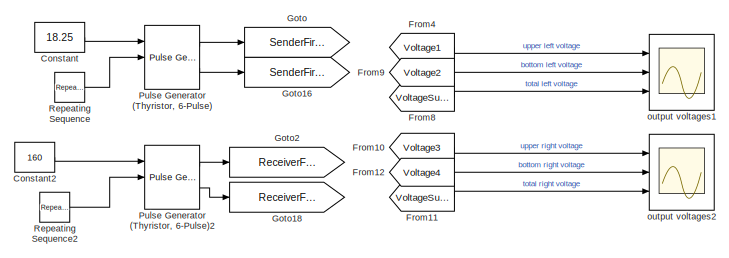
[diagram: root canvas - part 1/11, top left region]
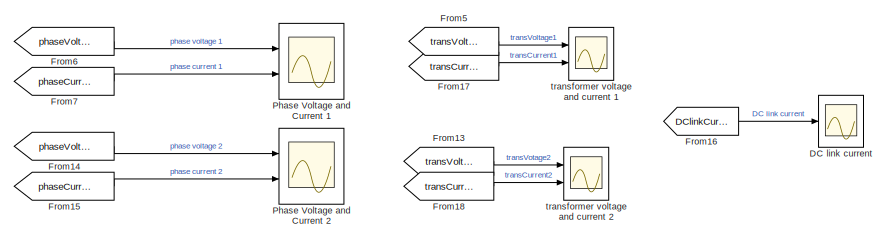
[diagram: root canvas - part 2/11, top center region]
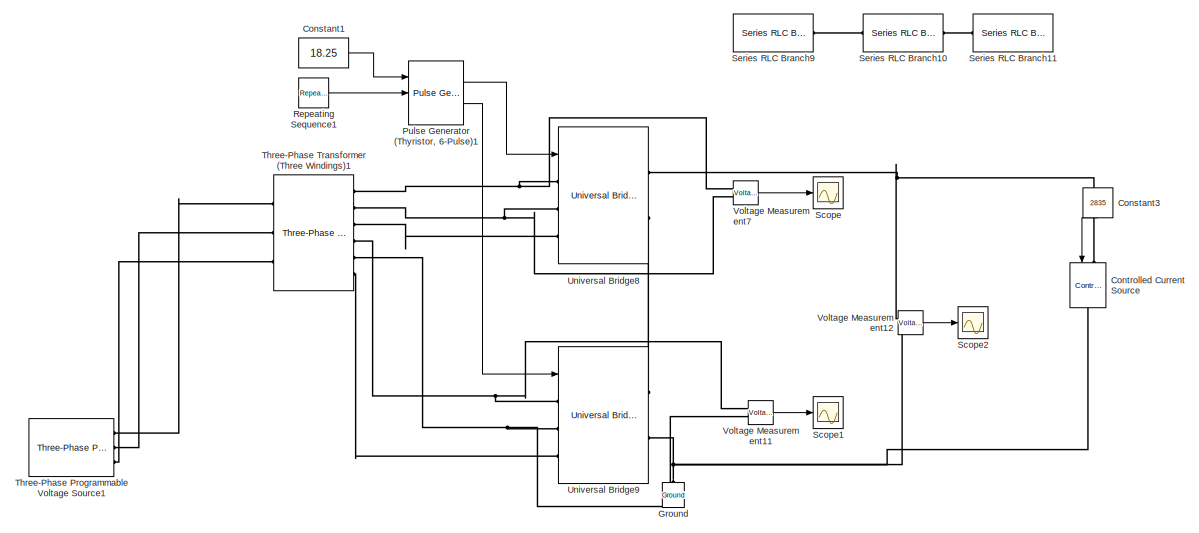
[diagram: root canvas - part 3/11, top right region]
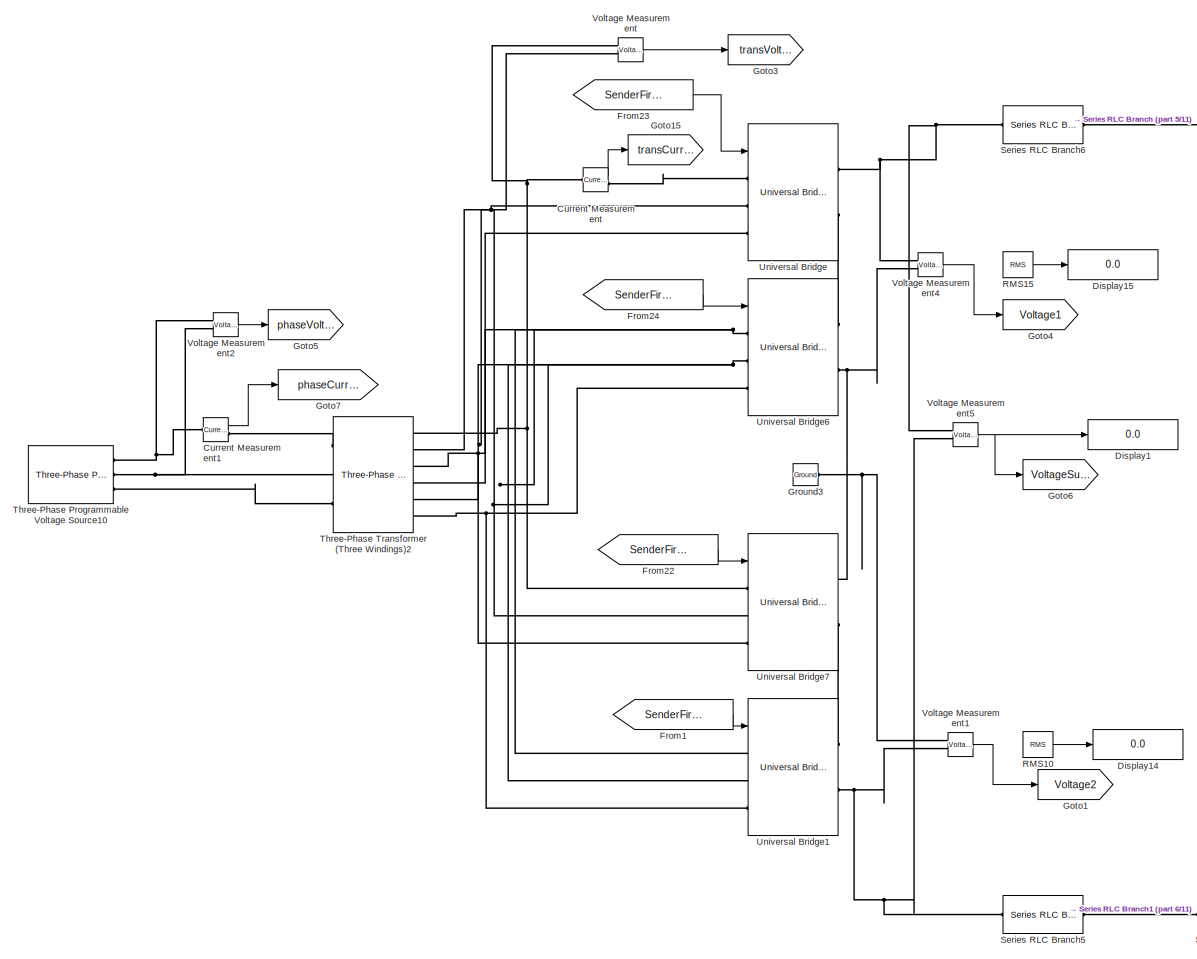
[diagram: root canvas - part 4/11, top left region]
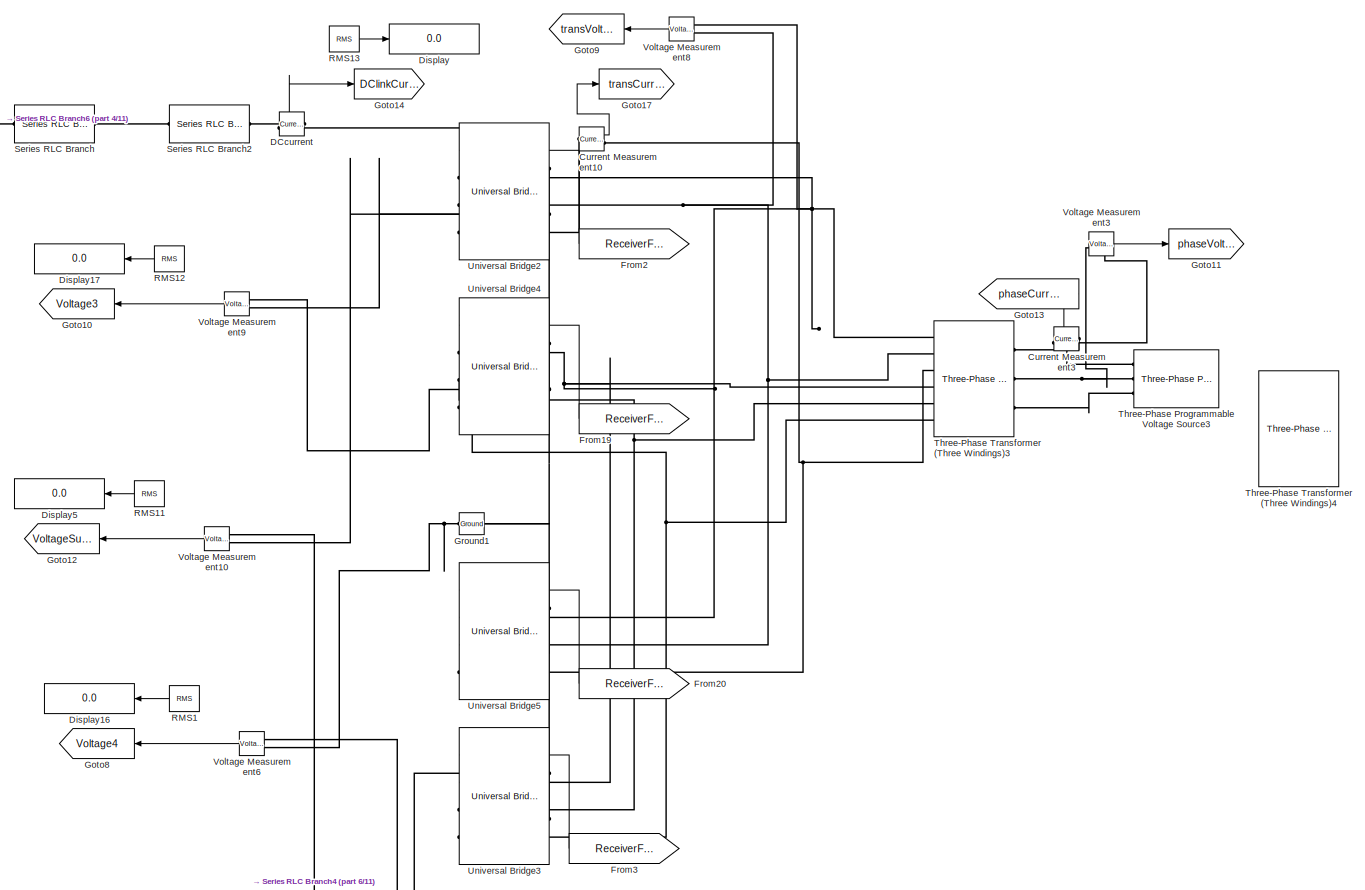
[diagram: root canvas - part 5/11, top center region]
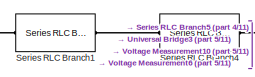
[diagram: root canvas - part 6/11, middle left region]
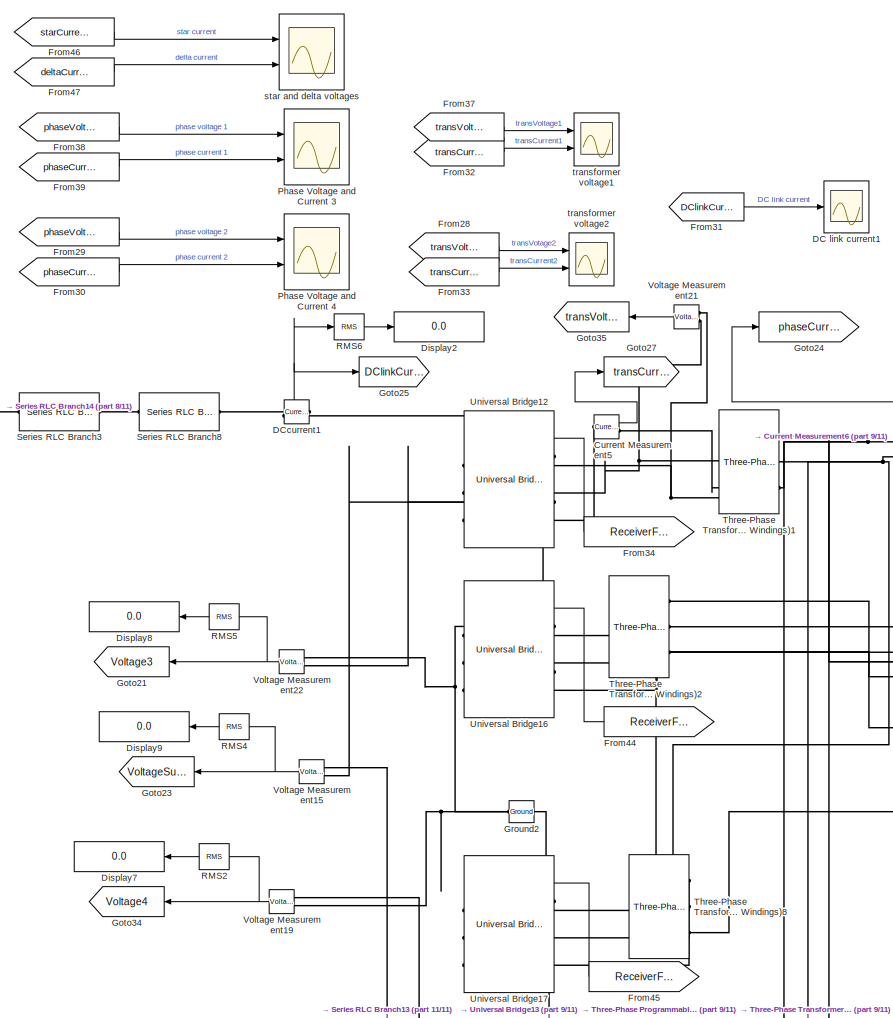
[diagram: root canvas - part 7/11, bottom center region]
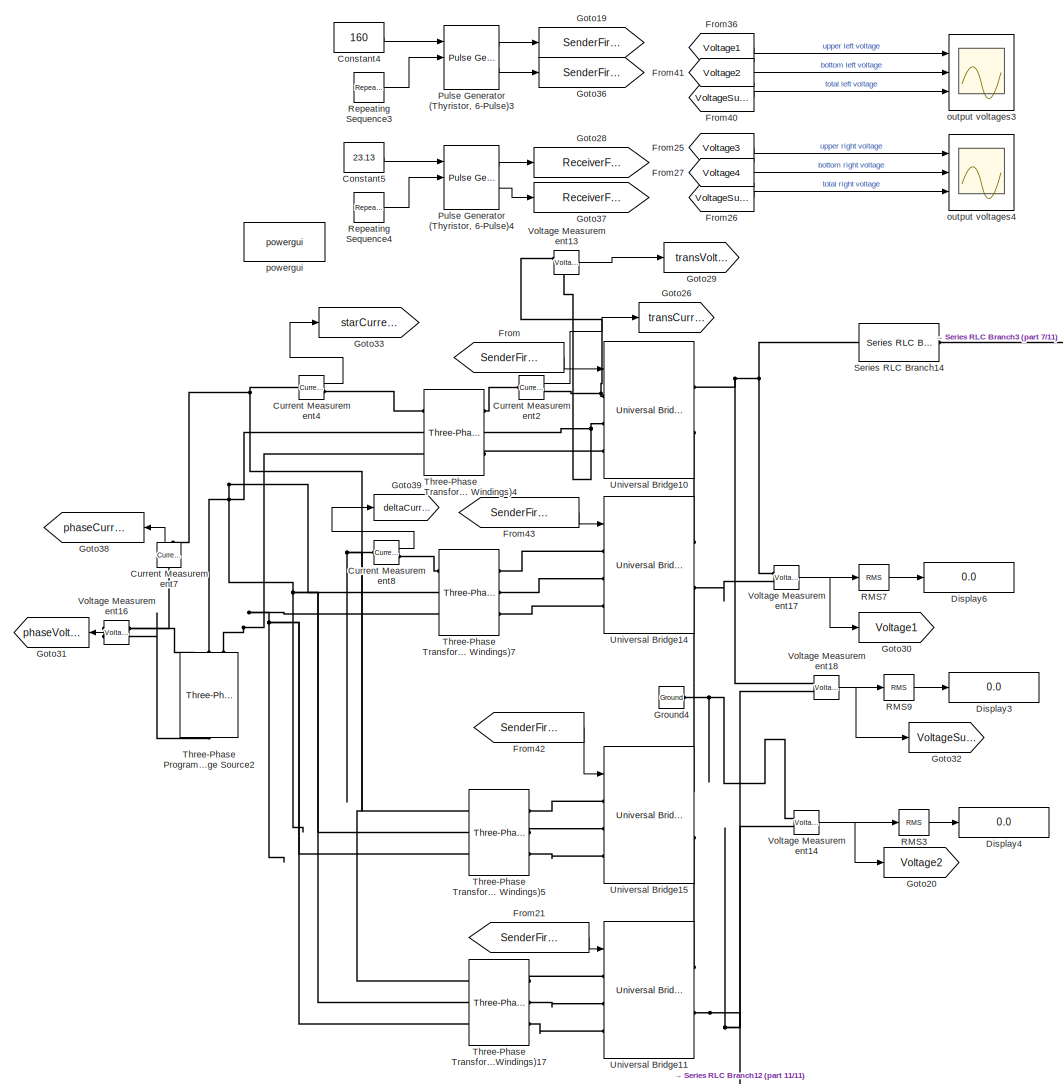
[diagram: root canvas - part 8/11, bottom left region]
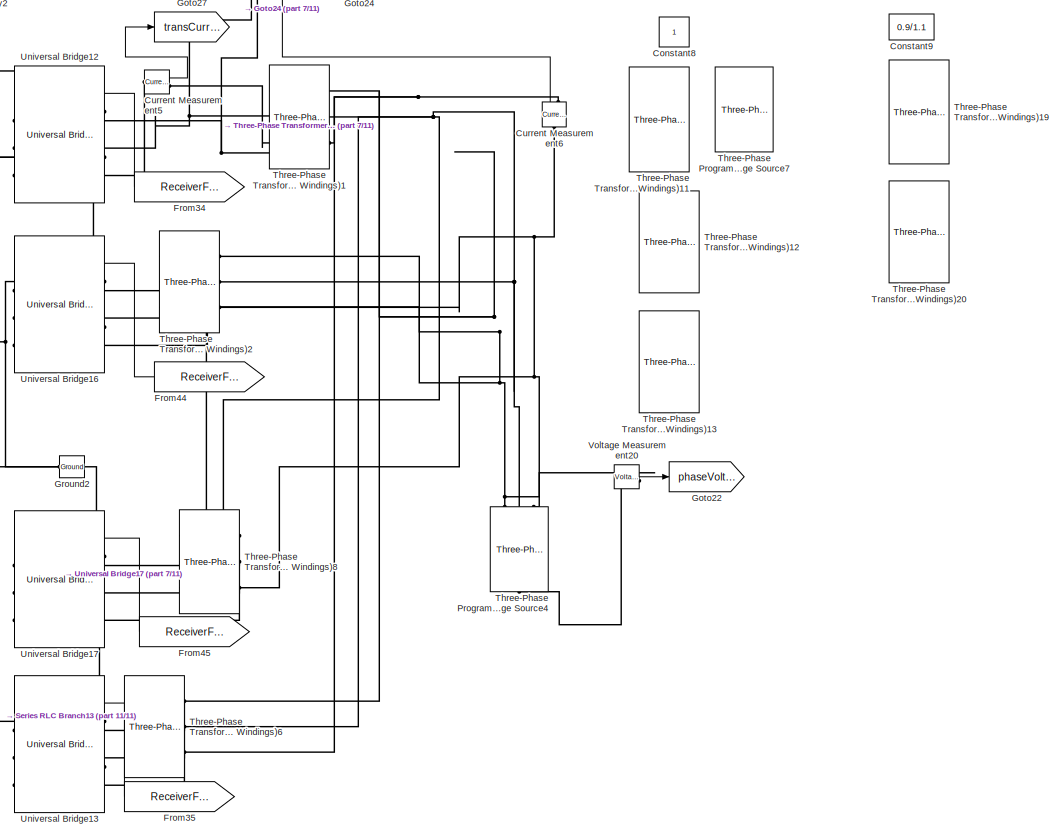
[diagram: root canvas - part 9/11, bottom center region]
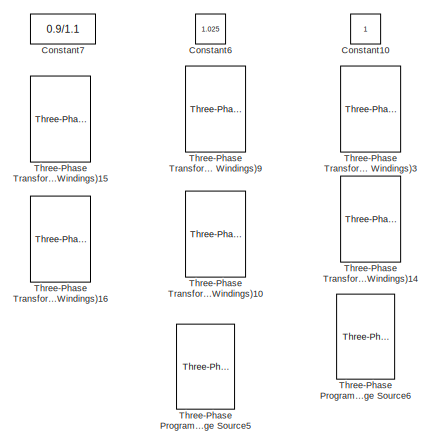
[diagram: root canvas - part 10/11, bottom left region]
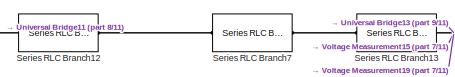
[diagram: root canvas - part 11/11, bottom center region]
MODEL slx_c90a9c417079
KIND model
CONFIG AbsTol = auto
CONFIG EnableMultiTasking = off
CONFIG FixedStep = auto
CONFIG MaxStep = 1e-4
CONFIG MinStep = auto
CONFIG RelTol = 1e-3
CONFIG SampleTimeConstraint = Unconstrained
CONFIG SolverName = ode23s
CONFIG StartTime = 0.0
CONFIG StopTime = 0.1
BLOCK [Constant] Constant
  Commented = on
  Value = 18.25
BLOCK [Constant] Constant1
  Commented = on
  Value = 18.25
BLOCK [Constant] Constant10
BLOCK [Constant] Constant2
  Commented = on
  Value = 160
BLOCK [Constant] Constant3
  Commented = on
  NameLocation = left
  Value = 2835
BLOCK [Constant] Constant4
  Value = 160
BLOCK [Constant] Constant5
  Value = 23.13
BLOCK [Constant] Constant6
  Value = 1.025
BLOCK [Constant] Constant7
  Value = 0.9/1.1
BLOCK [Constant] Constant8
BLOCK [Constant] Constant9
  Value = 0.9/1.1
BLOCK [Reference] Controlled Current Source  REF=spsControlledCurrentSourceLib/Controlled Current Source
  Commented = on
  NameLocation = top
  Ports = [1, 0, 0, 0, 0, 1, 1]
  SourceBlock = spsControlledCurrentSourceLib/Controlled Current Source
  SourceProductBaseCode = PS
  SourceType = Controlled Current Source
BLOCK [Reference] Current Measurement  REF=spsCurrentMeasurementLib/Current Measurement
  Commented = on
  Ports = [0, 1, 0, 0, 0, 1, 1]
  SourceBlock = spsCurrentMeasurementLib/Current Measurement
  SourceProductBaseCode = PS
  SourceType = Current Measurement
  UserDataPersistent = on
BLOCK [Reference] Current Measurement1  REF=spsCurrentMeasurementLib/Current Measurement
  Commented = on
  Ports = [0, 1, 0, 0, 0, 1, 1]
  SourceBlock = spsCurrentMeasurementLib/Current Measurement
  SourceProductBaseCode = PS
  SourceType = Current Measurement
  UserDataPersistent = on
BLOCK [Reference] Current Measurement10  REF=spsCurrentMeasurementLib/Current Measurement
  Commented = on
  Ports = [0, 1, 0, 0, 0, 1, 1]
  SourceBlock = spsCurrentMeasurementLib/Current Measurement
  SourceProductBaseCode = PS
  SourceType = Current Measurement
  UserDataPersistent = on
BLOCK [Reference] Current Measurement2  REF=spsCurrentMeasurementLib/Current Measurement
  Ports = [0, 1, 0, 0, 0, 1, 1]
  SourceBlock = spsCurrentMeasurementLib/Current Measurement
  SourceProductBaseCode = PS
  SourceType = Current Measurement
  UserDataPersistent = on
BLOCK [Reference] Current Measurement3  REF=spsCurrentMeasurementLib/Current Measurement
  Commented = on
  Ports = [0, 1, 0, 0, 0, 1, 1]
  SourceBlock = spsCurrentMeasurementLib/Current Measurement
  SourceProductBaseCode = PS
  SourceType = Current Measurement
  UserDataPersistent = on
BLOCK [Reference] Current Measurement4  REF=spsCurrentMeasurementLib/Current Measurement
  Ports = [0, 1, 0, 0, 0, 1, 1]
  SourceBlock = spsCurrentMeasurementLib/Current Measurement
  SourceProductBaseCode = PS
  SourceType = Current Measurement
  UserDataPersistent = on
BLOCK [Reference] Current Measurement5  REF=spsCurrentMeasurementLib/Current Measurement
  Ports = [0, 1, 0, 0, 0, 1, 1]
  SourceBlock = spsCurrentMeasurementLib/Current Measurement
  SourceProductBaseCode = PS
  SourceType = Current Measurement
  UserDataPersistent = on
BLOCK [Reference] Current Measurement6  REF=spsCurrentMeasurementLib/Current Measurement
  NameLocation = right
  Ports = [0, 1, 0, 0, 0, 1, 1]
  SourceBlock = spsCurrentMeasurementLib/Current Measurement
  SourceProductBaseCode = PS
  SourceType = Current Measurement
  UserDataPersistent = on
BLOCK [Reference] Current Measurement7  REF=spsCurrentMeasurementLib/Current Measurement
  NameLocation = right
  Ports = [0, 1, 0, 0, 0, 1, 1]
  SourceBlock = spsCurrentMeasurementLib/Current Measurement
  SourceProductBaseCode = PS
  SourceType = Current Measurement
  UserDataPersistent = on
BLOCK [Reference] Current Measurement8  REF=spsCurrentMeasurementLib/Current Measurement
  Ports = [0, 1, 0, 0, 0, 1, 1]
  SourceBlock = spsCurrentMeasurementLib/Current Measurement
  SourceProductBaseCode = PS
  SourceType = Current Measurement
  UserDataPersistent = on
BLOCK [Scope] DC link current
  Commented = on
  Floating = off
  NumInputPorts = 1
  Ports = [1]
  ScopeSpecificationString = Simulink.scopes.TimeScopeBlockCfg('CurrentConfiguration', extmgr.ConfigurationSet(extmgr.Configuration('Core','General UI',true,'FigureColor',[1 1 1]),extmgr.Configuration('Core','Source UI',true),extmgr.Configuration('Sources','WiredSimulink',true,'DataLoggingVariableName','ScopeData1'),extmgr.Configuration('Visuals','Time Domain',true,'SerializedDisplays',{struct('MinYLimReal','-2389233069080083...<+3072ch>
BLOCK [Scope] DC link current1
  Floating = off
  NumInputPorts = 1
  Ports = [1]
  ScopeSpecificationString = Simulink.scopes.TimeScopeBlockCfg('CurrentConfiguration', extmgr.ConfigurationSet(extmgr.Configuration('Core','General UI',true,'FigureColor',[1 1 1]),extmgr.Configuration('Core','Source UI',true),extmgr.Configuration('Sources','WiredSimulink',true,'DataLoggingVariableName','ScopeData4'),extmgr.Configuration('Visuals','Time Domain',true,'SerializedDisplays',{struct('MinYLimReal','-259.31015','MaxY...<+1870ch>
BLOCK [Reference] DCcurrent  REF=spsCurrentMeasurementLib/Current Measurement
  Commented = on
  Ports = [0, 1, 0, 0, 0, 1, 1]
  SourceBlock = spsCurrentMeasurementLib/Current Measurement
  SourceProductBaseCode = PS
  SourceType = Current Measurement
  UserDataPersistent = on
BLOCK [Reference] DCcurrent1  REF=spsCurrentMeasurementLib/Current Measurement
  Ports = [0, 1, 0, 0, 0, 1, 1]
  SourceBlock = spsCurrentMeasurementLib/Current Measurement
  SourceProductBaseCode = PS
  SourceType = Current Measurement
  UserDataPersistent = on
BLOCK [Display] Display
  Commented = on
  Decimation = 1
  Ports = [1]
BLOCK [Display] Display1
  Commented = on
  Decimation = 1
  Ports = [1]
BLOCK [Display] Display14
  Commented = on
  Decimation = 1
  Ports = [1]
BLOCK [Display] Display15
  Commented = on
  Decimation = 1
  Ports = [1]
BLOCK [Display] Display16
  Commented = on
  Decimation = 1
  NameLocation = top
  Ports = [1]
BLOCK [Display] Display17
  Commented = on
  Decimation = 1
  NameLocation = top
  Ports = [1]
BLOCK [Display] Display2
  Decimation = 1
  Ports = [1]
BLOCK [Display] Display3
  Decimation = 1
  Ports = [1]
BLOCK [Display] Display4
  Decimation = 1
  Ports = [1]
BLOCK [Display] Display5
  Commented = on
  Decimation = 1
  NameLocation = top
  Ports = [1]
BLOCK [Display] Display6
  Decimation = 1
  Ports = [1]
BLOCK [Display] Display7
  Decimation = 1
  NameLocation = top
  Ports = [1]
BLOCK [Display] Display8
  Decimation = 1
  NameLocation = top
  Ports = [1]
BLOCK [Display] Display9
  Decimation = 1
  NameLocation = top
  Ports = [1]
BLOCK [From] From
  GotoTag = SenderFiringAnglesY
BLOCK [From] From1
  Commented = on
  GotoTag = SenderFiringAnglesD
BLOCK [From] From10
  Commented = on
  GotoTag = Voltage3
BLOCK [From] From11
  Commented = on
  GotoTag = VoltageSum2
BLOCK [From] From12
  Commented = on
  GotoTag = Voltage4
BLOCK [From] From13
  Commented = on
  GotoTag = transVoltage2
BLOCK [From] From14
  Commented = on
  GotoTag = phaseVoltage2
BLOCK [From] From15
  Commented = on
  GotoTag = phaseCurrent2
BLOCK [From] From16
  Commented = on
  GotoTag = DClinkCurrent
BLOCK [From] From17
  Commented = on
  GotoTag = transCurrent1
BLOCK [From] From18
  Commented = on
  GotoTag = transCurrent2
BLOCK [From] From19
  Commented = on
  GotoTag = ReceiverFiringAnglesD
BLOCK [From] From2
  Commented = on
  GotoTag = ReceiverFiringAnglesY
BLOCK [From] From20
  Commented = on
  GotoTag = ReceiverFiringAnglesY
BLOCK [From] From21
  GotoTag = SenderFiringAnglesD
BLOCK [From] From22
  Commented = on
  GotoTag = SenderFiringAnglesY
BLOCK [From] From23
  Commented = on
  GotoTag = SenderFiringAnglesY
BLOCK [From] From24
  Commented = on
  GotoTag = SenderFiringAnglesD
BLOCK [From] From25
  GotoTag = Voltage3
BLOCK [From] From26
  GotoTag = VoltageSum2
BLOCK [From] From27
  GotoTag = Voltage4
BLOCK [From] From28
  GotoTag = transVoltage2
BLOCK [From] From29
  GotoTag = phaseVoltage2
BLOCK [From] From3
  Commented = on
  GotoTag = ReceiverFiringAnglesD
BLOCK [From] From30
  GotoTag = phaseCurrent2
BLOCK [From] From31
  GotoTag = DClinkCurrent
BLOCK [From] From32
  GotoTag = transCurrent1
BLOCK [From] From33
  GotoTag = transCurrent2
BLOCK [From] From34
  GotoTag = ReceiverFiringAnglesY
BLOCK [From] From35
  GotoTag = ReceiverFiringAnglesD
BLOCK [From] From36
  GotoTag = Voltage1
BLOCK [From] From37
  GotoTag = transVoltage1
BLOCK [From] From38
  GotoTag = phaseVoltage
BLOCK [From] From39
  GotoTag = phaseCurrent
BLOCK [From] From4
  Commented = on
  GotoTag = Voltage1
BLOCK [From] From40
  GotoTag = VoltageSum1
BLOCK [From] From41
  GotoTag = Voltage2
BLOCK [From] From42
  GotoTag = SenderFiringAnglesY
BLOCK [From] From43
  GotoTag = SenderFiringAnglesD
BLOCK [From] From44
  GotoTag = ReceiverFiringAnglesD
BLOCK [From] From45
  GotoTag = ReceiverFiringAnglesY
BLOCK [From] From46
  GotoTag = starCurrent
BLOCK [From] From47
  GotoTag = deltaCurrent
BLOCK [From] From5
  Commented = on
  GotoTag = transVoltage1
BLOCK [From] From6
  Commented = on
  GotoTag = phaseVoltage
BLOCK [From] From7
  Commented = on
  GotoTag = phaseCurrent
BLOCK [From] From8
  Commented = on
  GotoTag = VoltageSum1
BLOCK [From] From9
  Commented = on
  GotoTag = Voltage2
BLOCK [Goto] Goto
  Commented = on
  GotoTag = SenderFiringAnglesY
BLOCK [Goto] Goto1
  Commented = on
  GotoTag = Voltage2
BLOCK [Goto] Goto10
  Commented = on
  GotoTag = Voltage3
BLOCK [Goto] Goto11
  Commented = on
  GotoTag = phaseVoltage2
  NameLocation = top
BLOCK [Goto] Goto12
  Commented = on
  GotoTag = VoltageSum2
BLOCK [Goto] Goto13
  Commented = on
  GotoTag = phaseCurrent2
BLOCK [Goto] Goto14
  Commented = on
  GotoTag = DClinkCurrent
BLOCK [Goto] Goto15
  Commented = on
  GotoTag = transCurrent1
BLOCK [Goto] Goto16
  Commented = on
  GotoTag = SenderFiringAnglesD
BLOCK [Goto] Goto17
  Commented = on
  GotoTag = transCurrent2
BLOCK [Goto] Goto18
  Commented = on
  GotoTag = ReceiverFiringAnglesD
BLOCK [Goto] Goto19
  GotoTag = SenderFiringAnglesY
BLOCK [Goto] Goto2
  Commented = on
  GotoTag = ReceiverFiringAnglesY
BLOCK [Goto] Goto20
  GotoTag = Voltage2
BLOCK [Goto] Goto21
  GotoTag = Voltage3
BLOCK [Goto] Goto22
  GotoTag = phaseVoltage2
  NameLocation = top
BLOCK [Goto] Goto23
  GotoTag = VoltageSum2
BLOCK [Goto] Goto24
  GotoTag = phaseCurrent2
  NameLocation = top
BLOCK [Goto] Goto25
  GotoTag = DClinkCurrent
BLOCK [Goto] Goto26
  GotoTag = transCurrent1
BLOCK [Goto] Goto27
  GotoTag = transCurrent2
BLOCK [Goto] Goto28
  GotoTag = ReceiverFiringAnglesY
BLOCK [Goto] Goto29
  GotoTag = transVoltage1
BLOCK [Goto] Goto3
  Commented = on
  GotoTag = transVoltage1
BLOCK [Goto] Goto30
  GotoTag = Voltage1
BLOCK [Goto] Goto31
  GotoTag = phaseVoltage
  NameLocation = top
BLOCK [Goto] Goto32
  GotoTag = VoltageSum1
BLOCK [Goto] Goto33
  GotoTag = starCurrent
BLOCK [Goto] Goto34
  GotoTag = Voltage4
BLOCK [Goto] Goto35
  GotoTag = transVoltage2
BLOCK [Goto] Goto36
  GotoTag = SenderFiringAnglesD
BLOCK [Goto] Goto37
  GotoTag = ReceiverFiringAnglesD
BLOCK [Goto] Goto38
  GotoTag = phaseCurrent
  NameLocation = top
BLOCK [Goto] Goto39
  GotoTag = deltaCurrent
BLOCK [Goto] Goto4
  Commented = on
  GotoTag = Voltage1
BLOCK [Goto] Goto5
  Commented = on
  GotoTag = phaseVoltage
BLOCK [Goto] Goto6
  Commented = on
  GotoTag = VoltageSum1
BLOCK [Goto] Goto7
  Commented = on
  GotoTag = phaseCurrent
BLOCK [Goto] Goto8
  Commented = on
  GotoTag = Voltage4
BLOCK [Goto] Goto9
  Commented = on
  GotoTag = transVoltage2
BLOCK [Reference] Ground  REF=spsGroundLib/Ground
  Commented = on
  NameLocation = right
  Ports = [0, 0, 0, 0, 0, 1]
  SourceBlock = spsGroundLib/Ground
  SourceProductBaseCode = PS
  SourceType = Ground
BLOCK [Reference] Ground1  REF=spsGroundLib/Ground
  Commented = on
  NameLocation = top
  Ports = [0, 0, 0, 0, 0, 1]
  SourceBlock = spsGroundLib/Ground
  SourceProductBaseCode = PS
  SourceType = Ground
BLOCK [Reference] Ground2  REF=spsGroundLib/Ground
  NameLocation = top
  Ports = [0, 0, 0, 0, 0, 1]
  SourceBlock = spsGroundLib/Ground
  SourceProductBaseCode = PS
  SourceType = Ground
BLOCK [Reference] Ground3  REF=spsGroundLib/Ground
  Commented = on
  Ports = [0, 0, 0, 0, 0, 1]
  SourceBlock = spsGroundLib/Ground
  SourceProductBaseCode = PS
  SourceType = Ground
BLOCK [Reference] Ground4  REF=spsGroundLib/Ground
  Ports = [0, 0, 0, 0, 0, 1]
  SourceBlock = spsGroundLib/Ground
  SourceProductBaseCode = PS
  SourceType = Ground
BLOCK [Scope] Phase Voltage and Current 1
  Commented = on
  Floating = off
  NumInputPorts = 2
  Ports = [2]
  ScopeSpecificationString = Simulink.scopes.TimeScopeBlockCfg('CurrentConfiguration', extmgr.ConfigurationSet(extmgr.Configuration('Core','General UI',true,'FigureColor',[1 1 1]),extmgr.Configuration('Core','Source UI',true),extmgr.Configuration('Sources','WiredSimulink',true,'DataLoggingVariableName','ScopeData2'),extmgr.Configuration('Visuals','Time Domain',true,'SerializedDisplays',{struct('MinYLimReal','-39863.14457','Ma...<+2991ch>
BLOCK [Scope] Phase Voltage and Current 2
  Commented = on
  Floating = off
  NumInputPorts = 2
  Ports = [2]
  ScopeSpecificationString = Simulink.scopes.TimeScopeBlockCfg('CurrentConfiguration', extmgr.ConfigurationSet(extmgr.Configuration('Core','General UI',true,'FigureColor',[1 1 1]),extmgr.Configuration('Core','Source UI',true),extmgr.Configuration('Sources','WiredSimulink',true,'DataLoggingVariableName','ScopeData3'),extmgr.Configuration('Visuals','Time Domain',true,'SerializedDisplays',{struct('MinYLimReal','-35355.33902','Ma...<+2681ch>
BLOCK [Scope] Phase Voltage and Current 3
  Floating = off
  NumInputPorts = 2
  Ports = [2]
  ScopeSpecificationString = Simulink.scopes.TimeScopeBlockCfg('CurrentConfiguration', extmgr.ConfigurationSet(extmgr.Configuration('Core','General UI',true,'FigureColor',[1 1 1]),extmgr.Configuration('Core','Source UI',true),extmgr.Configuration('Sources','WiredSimulink',true,'DataLoggingVariableName','ScopeData5'),extmgr.Configuration('Visuals','Time Domain',true,'SerializedDisplays',{struct('MinYLimReal','-22453.65598','Ma...<+2383ch>
BLOCK [Scope] Phase Voltage and Current 4
  Floating = off
  NumInputPorts = 2
  Ports = [2]
  ScopeSpecificationString = Simulink.scopes.TimeScopeBlockCfg('CurrentConfiguration', extmgr.ConfigurationSet(extmgr.Configuration('Core','General UI',true,'FigureColor',[1 1 1]),extmgr.Configuration('Core','Source UI',true),extmgr.Configuration('Sources','WiredSimulink',true,'DataLoggingVariableName','ScopeData6'),extmgr.Configuration('Visuals','Time Domain',true,'SerializedDisplays',{struct('MinYLimReal','-20412.41452','Ma...<+2384ch>
BLOCK [Reference] Pulse Generator (Thyristor, 6-Pulse)  REF=spsPulseGeneratorThyristor6PulseLib/Pulse Generator
(Thyristor, 6-Pulse)
  Commented = on
  Ports = [3, 2]
  SourceBlock = spsPulseGeneratorThyristor6PulseLib/Pulse Generator\n(Thyristor, 6-Pulse)
  SourceProductBaseCode = PS
  SourceType = Pulse Generator (Thyristor)
BLOCK [Reference] Pulse Generator (Thyristor, 6-Pulse)1  REF=spsPulseGeneratorThyristor6PulseLib/Pulse Generator
(Thyristor, 6-Pulse)
  Commented = on
  Ports = [3, 2]
  SourceBlock = spsPulseGeneratorThyristor6PulseLib/Pulse Generator\n(Thyristor, 6-Pulse)
  SourceProductBaseCode = PS
  SourceType = Pulse Generator (Thyristor)
BLOCK [Reference] Pulse Generator (Thyristor, 6-Pulse)2  REF=spsPulseGeneratorThyristor6PulseLib/Pulse Generator
(Thyristor, 6-Pulse)
  Commented = on
  Ports = [3, 2]
  SourceBlock = spsPulseGeneratorThyristor6PulseLib/Pulse Generator\n(Thyristor, 6-Pulse)
  SourceProductBaseCode = PS
  SourceType = Pulse Generator (Thyristor)
BLOCK [Reference] Pulse Generator (Thyristor, 6-Pulse)3  REF=spsPulseGeneratorThyristor6PulseLib/Pulse Generator
(Thyristor, 6-Pulse)
  Ports = [3, 2]
  SourceBlock = spsPulseGeneratorThyristor6PulseLib/Pulse Generator\n(Thyristor, 6-Pulse)
  SourceProductBaseCode = PS
  SourceType = Pulse Generator (Thyristor)
BLOCK [Reference] Pulse Generator (Thyristor, 6-Pulse)4  REF=spsPulseGeneratorThyristor6PulseLib/Pulse Generator
(Thyristor, 6-Pulse)
  Ports = [3, 2]
  SourceBlock = spsPulseGeneratorThyristor6PulseLib/Pulse Generator\n(Thyristor, 6-Pulse)
  SourceProductBaseCode = PS
  SourceType = Pulse Generator (Thyristor)
BLOCK [Reference] RMS1  REF=spsRMSLib/RMS
  Commented = on
  NameLocation = top
  Ports = [1, 1]
  SourceBlock = spsRMSLib/RMS
  SourceProductBaseCode = PS
  SourceType = RMS
BLOCK [Reference] RMS10  REF=spsRMSLib/RMS
  Commented = on
  Ports = [1, 1]
  SourceBlock = spsRMSLib/RMS
  SourceProductBaseCode = PS
  SourceType = RMS
BLOCK [Reference] RMS11  REF=spsRMSLib/RMS
  Commented = on
  NameLocation = top
  Ports = [1, 1]
  SourceBlock = spsRMSLib/RMS
  SourceProductBaseCode = PS
  SourceType = RMS
BLOCK [Reference] RMS12  REF=spsRMSLib/RMS
  Commented = on
  NameLocation = top
  Ports = [1, 1]
  SourceBlock = spsRMSLib/RMS
  SourceProductBaseCode = PS
  SourceType = RMS
BLOCK [Reference] RMS13  REF=spsRMSLib/RMS
  Commented = on
  Ports = [1, 1]
  SourceBlock = spsRMSLib/RMS
  SourceProductBaseCode = PS
  SourceType = RMS
BLOCK [Reference] RMS15  REF=spsRMSLib/RMS
  Commented = on
  Ports = [1, 1]
  SourceBlock = spsRMSLib/RMS
  SourceProductBaseCode = PS
  SourceType = RMS
BLOCK [Reference] RMS2  REF=spsRMSLib/RMS
  NameLocation = top
  Ports = [1, 1]
  SourceBlock = spsRMSLib/RMS
  SourceProductBaseCode = PS
  SourceType = RMS
BLOCK [Reference] RMS3  REF=spsRMSLib/RMS
  Ports = [1, 1]
  SourceBlock = spsRMSLib/RMS
  SourceProductBaseCode = PS
  SourceType = RMS
BLOCK [Reference] RMS4  REF=spsRMSLib/RMS
  NameLocation = top
  Ports = [1, 1]
  SourceBlock = spsRMSLib/RMS
  SourceProductBaseCode = PS
  SourceType = RMS
BLOCK [Reference] RMS5  REF=spsRMSLib/RMS
  NameLocation = top
  Ports = [1, 1]
  SourceBlock = spsRMSLib/RMS
  SourceProductBaseCode = PS
  SourceType = RMS
BLOCK [Reference] RMS6  REF=spsRMSLib/RMS
  Ports = [1, 1]
  SourceBlock = spsRMSLib/RMS
  SourceProductBaseCode = PS
  SourceType = RMS
BLOCK [Reference] RMS7  REF=spsRMSLib/RMS
  Ports = [1, 1]
  SourceBlock = spsRMSLib/RMS
  SourceProductBaseCode = PS
  SourceType = RMS
BLOCK [Reference] RMS9  REF=spsRMSLib/RMS
  Ports = [1, 1]
  SourceBlock = spsRMSLib/RMS
  SourceProductBaseCode = PS
  SourceType = RMS
BLOCK [Reference] Repeating Sequence  REF=simulink/Sources/Repeating
Sequence
  Commented = on
  Ports = [0, 1]
  SourceBlock = simulink/Sources/Repeating\nSequence
  SourceProductBaseCode = SL
  SourceType = Repeating table
BLOCK [Reference] Repeating Sequence1  REF=simulink/Sources/Repeating
Sequence
  Commented = on
  Ports = [0, 1]
  SourceBlock = simulink/Sources/Repeating\nSequence
  SourceProductBaseCode = SL
  SourceType = Repeating table
BLOCK [Reference] Repeating Sequence2  REF=simulink/Sources/Repeating
Sequence
  Commented = on
  Ports = [0, 1]
  SourceBlock = simulink/Sources/Repeating\nSequence
  SourceProductBaseCode = SL
  SourceType = Repeating table
BLOCK [Reference] Repeating Sequence3  REF=simulink/Sources/Repeating
Sequence
  Ports = [0, 1]
  SourceBlock = simulink/Sources/Repeating\nSequence
  SourceProductBaseCode = SL
  SourceType = Repeating table
BLOCK [Reference] Repeating Sequence4  REF=simulink/Sources/Repeating
Sequence
  Ports = [0, 1]
  SourceBlock = simulink/Sources/Repeating\nSequence
  SourceProductBaseCode = SL
  SourceType = Repeating table
BLOCK [Scope] Scope
  Commented = on
  Floating = off
  NumInputPorts = 1
  Ports = [1]
  ScopeSpecificationString = Simulink.scopes.TimeScopeBlockCfg('CurrentConfiguration', extmgr.ConfigurationSet(extmgr.Configuration('Core','General UI',true),extmgr.Configuration('Core','Source UI',true),extmgr.Configuration('Sources','WiredSimulink',true,'DataLoggingVariableName','ScopeData1'),extmgr.Configuration('Visuals','Time Domain',true,'SerializedDisplays',{struct('MinYLimReal','317416.63035','MaxYLimReal','319212.706...<+1517ch>
BLOCK [Scope] Scope1
  Commented = on
  Floating = off
  NumInputPorts = 1
  Ports = [1]
  ScopeSpecificationString = Simulink.scopes.TimeScopeBlockCfg('CurrentConfiguration', extmgr.ConfigurationSet(extmgr.Configuration('Core','General UI',true),extmgr.Configuration('Core','Source UI',true),extmgr.Configuration('Sources','WiredSimulink',true,'DataLoggingVariableName','ScopeData2'),extmgr.Configuration('Visuals','Time Domain',true,'SerializedDisplays',{struct('MinYLimReal','517021.45339','MaxYLimReal','575644.358...<+1518ch>
BLOCK [Scope] Scope2
  Commented = on
  Floating = off
  NumInputPorts = 1
  Ports = [1]
  ScopeSpecificationString = Simulink.scopes.TimeScopeBlockCfg('CurrentConfiguration', extmgr.ConfigurationSet(extmgr.Configuration('Core','General UI',true),extmgr.Configuration('Core','Source UI',true),extmgr.Configuration('Sources','WiredSimulink',true,'DataLoggingVariableName','ScopeData3'),extmgr.Configuration('Visuals','Time Domain',true,'SerializedDisplays',{struct('MinYLimReal','-425355962.84922','MaxYLimReal','482036...<+1494ch>
BLOCK [Reference] Series RLC Branch  REF=spsSeriesRLCBranchLib/Series RLC Branch
  Commented = on
  Ports = [0, 0, 0, 0, 0, 1, 1]
  SourceBlock = spsSeriesRLCBranchLib/Series RLC Branch
  SourceProductBaseCode = PS
  SourceType = Series RLC Branch
BLOCK [Reference] Series RLC Branch1  REF=spsSeriesRLCBranchLib/Series RLC Branch
  Commented = on
  Ports = [0, 0, 0, 0, 0, 1, 1]
  SourceBlock = spsSeriesRLCBranchLib/Series RLC Branch
  SourceProductBaseCode = PS
  SourceType = Series RLC Branch
BLOCK [Reference] Series RLC Branch10  REF=spsSeriesRLCBranchLib/Series RLC Branch
  Commented = on
  Ports = [0, 0, 0, 0, 0, 1, 1]
  SourceBlock = spsSeriesRLCBranchLib/Series RLC Branch
  SourceProductBaseCode = PS
  SourceType = Series RLC Branch
BLOCK [Reference] Series RLC Branch11  REF=spsSeriesRLCBranchLib/Series RLC Branch
  Commented = on
  Ports = [0, 0, 0, 0, 0, 1, 1]
  SourceBlock = spsSeriesRLCBranchLib/Series RLC Branch
  SourceProductBaseCode = PS
  SourceType = Series RLC Branch
BLOCK [Reference] Series RLC Branch12  REF=spsSeriesRLCBranchLib/Series RLC Branch
  Ports = [0, 0, 0, 0, 0, 1, 1]
  SourceBlock = spsSeriesRLCBranchLib/Series RLC Branch
  SourceProductBaseCode = PS
  SourceType = Series RLC Branch
BLOCK [Reference] Series RLC Branch13  REF=spsSeriesRLCBranchLib/Series RLC Branch
  Ports = [0, 0, 0, 0, 0, 1, 1]
  SourceBlock = spsSeriesRLCBranchLib/Series RLC Branch
  SourceProductBaseCode = PS
  SourceType = Series RLC Branch
BLOCK [Reference] Series RLC Branch14  REF=spsSeriesRLCBranchLib/Series RLC Branch
  Ports = [0, 0, 0, 0, 0, 1, 1]
  SourceBlock = spsSeriesRLCBranchLib/Series RLC Branch
  SourceProductBaseCode = PS
  SourceType = Series RLC Branch
BLOCK [Reference] Series RLC Branch2  REF=spsSeriesRLCBranchLib/Series RLC Branch
  Commented = on
  Ports = [0, 0, 0, 0, 0, 1, 1]
  SourceBlock = spsSeriesRLCBranchLib/Series RLC Branch
  SourceProductBaseCode = PS
  SourceType = Series RLC Branch
BLOCK [Reference] Series RLC Branch3  REF=spsSeriesRLCBranchLib/Series RLC Branch
  Ports = [0, 0, 0, 0, 0, 1, 1]
  SourceBlock = spsSeriesRLCBranchLib/Series RLC Branch
  SourceProductBaseCode = PS
  SourceType = Series RLC Branch
BLOCK [Reference] Series RLC Branch4  REF=spsSeriesRLCBranchLib/Series RLC Branch
  Commented = on
  Ports = [0, 0, 0, 0, 0, 1, 1]
  SourceBlock = spsSeriesRLCBranchLib/Series RLC Branch
  SourceProductBaseCode = PS
  SourceType = Series RLC Branch
BLOCK [Reference] Series RLC Branch5  REF=spsSeriesRLCBranchLib/Series RLC Branch
  Commented = on
  Ports = [0, 0, 0, 0, 0, 1, 1]
  SourceBlock = spsSeriesRLCBranchLib/Series RLC Branch
  SourceProductBaseCode = PS
  SourceType = Series RLC Branch
BLOCK [Reference] Series RLC Branch6  REF=spsSeriesRLCBranchLib/Series RLC Branch
  Commented = on
  Ports = [0, 0, 0, 0, 0, 1, 1]
  SourceBlock = spsSeriesRLCBranchLib/Series RLC Branch
  SourceProductBaseCode = PS
  SourceType = Series RLC Branch
BLOCK [Reference] Series RLC Branch7  REF=spsSeriesRLCBranchLib/Series RLC Branch
  Ports = [0, 0, 0, 0, 0, 1, 1]
  SourceBlock = spsSeriesRLCBranchLib/Series RLC Branch
  SourceProductBaseCode = PS
  SourceType = Series RLC Branch
BLOCK [Reference] Series RLC Branch8  REF=spsSeriesRLCBranchLib/Series RLC Branch
  Ports = [0, 0, 0, 0, 0, 1, 1]
  SourceBlock = spsSeriesRLCBranchLib/Series RLC Branch
  SourceProductBaseCode = PS
  SourceType = Series RLC Branch
BLOCK [Reference] Series RLC Branch9  REF=spsSeriesRLCBranchLib/Series RLC Branch
  Commented = on
  Ports = [0, 0, 0, 0, 0, 1, 1]
  SourceBlock = spsSeriesRLCBranchLib/Series RLC Branch
  SourceProductBaseCode = PS
  SourceType = Series RLC Branch
BLOCK [Reference] Three-Phase Programmable Voltage Source1  REF=spsThreePhaseProgrammableVoltageSourceLib/Three-Phase
Programmable
Voltage Source
  Commented = on
  Ports = [0, 0, 0, 0, 0, 1, 3]
  SourceBlock = spsThreePhaseProgrammableVoltageSourceLib/Three-Phase\nProgrammable\nVoltage Source
  SourceProductBaseCode = PS
  SourceType = Three-Phase Programmable Voltage Source
BLOCK [Reference] Three-Phase Programmable Voltage Source10  REF=spsThreePhaseProgrammableVoltageSourceLib/Three-Phase
Programmable
Voltage Source
  Commented = on
  Ports = [0, 0, 0, 0, 0, 1, 3]
  SourceBlock = spsThreePhaseProgrammableVoltageSourceLib/Three-Phase\nProgrammable\nVoltage Source
  SourceProductBaseCode = PS
  SourceType = Three-Phase Programmable Voltage Source
BLOCK [Reference] Three-Phase Programmable Voltage Source2  REF=spsThreePhaseProgrammableVoltageSourceLib/Three-Phase
Programmable
Voltage Source
  NameLocation = right
  Ports = [0, 0, 0, 0, 0, 1, 3]
  SourceBlock = spsThreePhaseProgrammableVoltageSourceLib/Three-Phase\nProgrammable\nVoltage Source
  SourceProductBaseCode = PS
  SourceType = Three-Phase Programmable Voltage Source
BLOCK [Reference] Three-Phase Programmable Voltage Source3  REF=spsThreePhaseProgrammableVoltageSourceLib/Three-Phase
Programmable
Voltage Source
  Commented = on
  NameLocation = top
  Ports = [0, 0, 0, 0, 0, 1, 3]
  SourceBlock = spsThreePhaseProgrammableVoltageSourceLib/Three-Phase\nProgrammable\nVoltage Source
  SourceProductBaseCode = PS
  SourceType = Three-Phase Programmable Voltage Source
BLOCK [Reference] Three-Phase Programmable Voltage Source4  REF=spsThreePhaseProgrammableVoltageSourceLib/Three-Phase
Programmable
Voltage Source
  NameLocation = right
  Ports = [0, 0, 0, 0, 0, 1, 3]
  SourceBlock = spsThreePhaseProgrammableVoltageSourceLib/Three-Phase\nProgrammable\nVoltage Source
  SourceProductBaseCode = PS
  SourceType = Three-Phase Programmable Voltage Source
BLOCK [Reference] Three-Phase Programmable Voltage Source5  REF=spsThreePhaseProgrammableVoltageSourceLib/Three-Phase
Programmable
Voltage Source
  NameLocation = right
  Ports = [0, 0, 0, 0, 0, 1, 3]
  SourceBlock = spsThreePhaseProgrammableVoltageSourceLib/Three-Phase\nProgrammable\nVoltage Source
  SourceProductBaseCode = PS
  SourceType = Three-Phase Programmable Voltage Source
BLOCK [Reference] Three-Phase Programmable Voltage Source6  REF=spsThreePhaseProgrammableVoltageSourceLib/Three-Phase
Programmable
Voltage Source
  NameLocation = right
  Ports = [0, 0, 0, 0, 0, 1, 3]
  SourceBlock = spsThreePhaseProgrammableVoltageSourceLib/Three-Phase\nProgrammable\nVoltage Source
  SourceProductBaseCode = PS
  SourceType = Three-Phase Programmable Voltage Source
BLOCK [Reference] Three-Phase Programmable Voltage Source7  REF=spsThreePhaseProgrammableVoltageSourceLib/Three-Phase
Programmable
Voltage Source
  NameLocation = right
  Ports = [0, 0, 0, 0, 0, 1, 3]
  SourceBlock = spsThreePhaseProgrammableVoltageSourceLib/Three-Phase\nProgrammable\nVoltage Source
  SourceProductBaseCode = PS
  SourceType = Three-Phase Programmable Voltage Source
BLOCK [Reference] Three-Phase Transformer (Three Windings)1  REF=spsThreePhaseTransformerThreeWindingsLib/Three-Phase
Transformer
(Three Windings)
  Commented = on
  Ports = [0, 0, 0, 0, 0, 3, 6]
  SourceBlock = spsThreePhaseTransformerThreeWindingsLib/Three-Phase\nTransformer\n(Three Windings)
  SourceProductBaseCode = PS
  SourceType = Three-Phase Transformer (Three Windings)
BLOCK [Reference] Three-Phase Transformer (Three Windings)2  REF=spsThreePhaseTransformerThreeWindingsLib/Three-Phase
Transformer
(Three Windings)
  Commented = on
  Ports = [0, 0, 0, 0, 0, 3, 6]
  SourceBlock = spsThreePhaseTransformerThreeWindingsLib/Three-Phase\nTransformer\n(Three Windings)
  SourceProductBaseCode = PS
  SourceType = Three-Phase Transformer (Three Windings)
BLOCK [Reference] Three-Phase Transformer (Three Windings)3  REF=spsThreePhaseTransformerThreeWindingsLib/Three-Phase
Transformer
(Three Windings)
  Commented = on
  Ports = [0, 0, 0, 0, 0, 3, 6]
  SourceBlock = spsThreePhaseTransformerThreeWindingsLib/Three-Phase\nTransformer\n(Three Windings)
  SourceProductBaseCode = PS
  SourceType = Three-Phase Transformer (Three Windings)
BLOCK [Reference] Three-Phase Transformer (Three Windings)4  REF=spsThreePhaseTransformerThreeWindingsLib/Three-Phase
Transformer
(Three Windings)
  Commented = on
  NameLocation = top
  Ports = [0, 0, 0, 0, 0, 3, 6]
  SourceBlock = spsThreePhaseTransformerThreeWindingsLib/Three-Phase\nTransformer\n(Three Windings)
  SourceProductBaseCode = PS
  SourceType = Three-Phase Transformer (Three Windings)
BLOCK [Reference] Three-Phase Transformer (Two Windings)1  REF=spsThreePhaseTransformerTwoWindingsLib/Three-Phase
Transformer
(Two Windings)
  NameLocation = top
  Ports = [0, 0, 0, 0, 0, 3, 3]
  SourceBlock = spsThreePhaseTransformerTwoWindingsLib/Three-Phase\nTransformer\n(Two Windings)
  SourceProductBaseCode = PS
  SourceType = Three-Phase Transformer (Two Windings)
BLOCK [Reference] Three-Phase Transformer (Two Windings)10  REF=spsThreePhaseTransformerTwoWindingsLib/Three-Phase
Transformer
(Two Windings)
  Ports = [0, 0, 0, 0, 0, 3, 3]
  SourceBlock = spsThreePhaseTransformerTwoWindingsLib/Three-Phase\nTransformer\n(Two Windings)
  SourceProductBaseCode = PS
  SourceType = Three-Phase Transformer (Two Windings)
BLOCK [Reference] Three-Phase Transformer (Two Windings)11  REF=spsThreePhaseTransformerTwoWindingsLib/Three-Phase
Transformer
(Two Windings)
  NameLocation = top
  Ports = [0, 0, 0, 0, 0, 4, 3]
  SourceBlock = spsThreePhaseTransformerTwoWindingsLib/Three-Phase\nTransformer\n(Two Windings)
  SourceProductBaseCode = PS
  SourceType = Three-Phase Transformer (Two Windings)
BLOCK [Reference] Three-Phase Transformer (Two Windings)12  REF=spsThreePhaseTransformerTwoWindingsLib/Three-Phase
Transformer
(Two Windings)
  NameLocation = top
  Ports = [0, 0, 0, 0, 0, 3, 3]
  SourceBlock = spsThreePhaseTransformerTwoWindingsLib/Three-Phase\nTransformer\n(Two Windings)
  SourceProductBaseCode = PS
  SourceType = Three-Phase Transformer (Two Windings)
BLOCK [Reference] Three-Phase Transformer (Two Windings)13  REF=spsThreePhaseTransformerTwoWindingsLib/Three-Phase
Transformer
(Two Windings)
  NameLocation = top
  Ports = [0, 0, 0, 0, 0, 3, 3]
  SourceBlock = spsThreePhaseTransformerTwoWindingsLib/Three-Phase\nTransformer\n(Two Windings)
  SourceProductBaseCode = PS
  SourceType = Three-Phase Transformer (Two Windings)
BLOCK [Reference] Three-Phase Transformer (Two Windings)14  REF=spsThreePhaseTransformerTwoWindingsLib/Three-Phase
Transformer
(Two Windings)
  Ports = [0, 0, 0, 0, 0, 3, 3]
  SourceBlock = spsThreePhaseTransformerTwoWindingsLib/Three-Phase\nTransformer\n(Two Windings)
  SourceProductBaseCode = PS
  SourceType = Three-Phase Transformer (Two Windings)
BLOCK [Reference] Three-Phase Transformer (Two Windings)15  REF=spsThreePhaseTransformerTwoWindingsLib/Three-Phase
Transformer
(Two Windings)
  Ports = [0, 0, 0, 0, 0, 3, 3]
  SourceBlock = spsThreePhaseTransformerTwoWindingsLib/Three-Phase\nTransformer\n(Two Windings)
  SourceProductBaseCode = PS
  SourceType = Three-Phase Transformer (Two Windings)
BLOCK [Reference] Three-Phase Transformer (Two Windings)16  REF=spsThreePhaseTransformerTwoWindingsLib/Three-Phase
Transformer
(Two Windings)
  Ports = [0, 0, 0, 0, 0, 3, 3]
  SourceBlock = spsThreePhaseTransformerTwoWindingsLib/Three-Phase\nTransformer\n(Two Windings)
  SourceProductBaseCode = PS
  SourceType = Three-Phase Transformer (Two Windings)
BLOCK [Reference] Three-Phase Transformer (Two Windings)17  REF=spsThreePhaseTransformerTwoWindingsLib/Three-Phase
Transformer
(Two Windings)
  Ports = [0, 0, 0, 0, 0, 3, 3]
  SourceBlock = spsThreePhaseTransformerTwoWindingsLib/Three-Phase\nTransformer\n(Two Windings)
  SourceProductBaseCode = PS
  SourceType = Three-Phase Transformer (Two Windings)
BLOCK [Reference] Three-Phase Transformer (Two Windings)19  REF=spsThreePhaseTransformerTwoWindingsLib/Three-Phase
Transformer
(Two Windings)
  NameLocation = top
  Ports = [0, 0, 0, 0, 0, 3, 3]
  SourceBlock = spsThreePhaseTransformerTwoWindingsLib/Three-Phase\nTransformer\n(Two Windings)
  SourceProductBaseCode = PS
  SourceType = Three-Phase Transformer (Two Windings)
BLOCK [Reference] Three-Phase Transformer (Two Windings)2  REF=spsThreePhaseTransformerTwoWindingsLib/Three-Phase
Transformer
(Two Windings)
  NameLocation = top
  Ports = [0, 0, 0, 0, 0, 3, 3]
  SourceBlock = spsThreePhaseTransformerTwoWindingsLib/Three-Phase\nTransformer\n(Two Windings)
  SourceProductBaseCode = PS
  SourceType = Three-Phase Transformer (Two Windings)
BLOCK [Reference] Three-Phase Transformer (Two Windings)20  REF=spsThreePhaseTransformerTwoWindingsLib/Three-Phase
Transformer
(Two Windings)
  NameLocation = top
  Ports = [0, 0, 0, 0, 0, 3, 3]
  SourceBlock = spsThreePhaseTransformerTwoWindingsLib/Three-Phase\nTransformer\n(Two Windings)
  SourceProductBaseCode = PS
  SourceType = Three-Phase Transformer (Two Windings)
BLOCK [Reference] Three-Phase Transformer (Two Windings)3  REF=spsThreePhaseTransformerTwoWindingsLib/Three-Phase
Transformer
(Two Windings)
  Ports = [0, 0, 0, 0, 0, 3, 3]
  SourceBlock = spsThreePhaseTransformerTwoWindingsLib/Three-Phase\nTransformer\n(Two Windings)
  SourceProductBaseCode = PS
  SourceType = Three-Phase Transformer (Two Windings)
BLOCK [Reference] Three-Phase Transformer (Two Windings)4  REF=spsThreePhaseTransformerTwoWindingsLib/Three-Phase
Transformer
(Two Windings)
  Ports = [0, 0, 0, 0, 0, 3, 3]
  SourceBlock = spsThreePhaseTransformerTwoWindingsLib/Three-Phase\nTransformer\n(Two Windings)
  SourceProductBaseCode = PS
  SourceType = Three-Phase Transformer (Two Windings)
BLOCK [Reference] Three-Phase Transformer (Two Windings)5  REF=spsThreePhaseTransformerTwoWindingsLib/Three-Phase
Transformer
(Two Windings)
  Ports = [0, 0, 0, 0, 0, 3, 3]
  SourceBlock = spsThreePhaseTransformerTwoWindingsLib/Three-Phase\nTransformer\n(Two Windings)
  SourceProductBaseCode = PS
  SourceType = Three-Phase Transformer (Two Windings)
BLOCK [Reference] Three-Phase Transformer (Two Windings)6  REF=spsThreePhaseTransformerTwoWindingsLib/Three-Phase
Transformer
(Two Windings)
  NameLocation = top
  Ports = [0, 0, 0, 0, 0, 3, 3]
  SourceBlock = spsThreePhaseTransformerTwoWindingsLib/Three-Phase\nTransformer\n(Two Windings)
  SourceProductBaseCode = PS
  SourceType = Three-Phase Transformer (Two Windings)
BLOCK [Reference] Three-Phase Transformer (Two Windings)7  REF=spsThreePhaseTransformerTwoWindingsLib/Three-Phase
Transformer
(Two Windings)
  Ports = [0, 0, 0, 0, 0, 3, 3]
  SourceBlock = spsThreePhaseTransformerTwoWindingsLib/Three-Phase\nTransformer\n(Two Windings)
  SourceProductBaseCode = PS
  SourceType = Three-Phase Transformer (Two Windings)
BLOCK [Reference] Three-Phase Transformer (Two Windings)8  REF=spsThreePhaseTransformerTwoWindingsLib/Three-Phase
Transformer
(Two Windings)
  NameLocation = top
  Ports = [0, 0, 0, 0, 0, 3, 3]
  SourceBlock = spsThreePhaseTransformerTwoWindingsLib/Three-Phase\nTransformer\n(Two Windings)
  SourceProductBaseCode = PS
  SourceType = Three-Phase Transformer (Two Windings)
BLOCK [Reference] Three-Phase Transformer (Two Windings)9  REF=spsThreePhaseTransformerTwoWindingsLib/Three-Phase
Transformer
(Two Windings)
  Ports = [0, 0, 0, 0, 0, 3, 3]
  SourceBlock = spsThreePhaseTransformerTwoWindingsLib/Three-Phase\nTransformer\n(Two Windings)
  SourceProductBaseCode = PS
  SourceType = Three-Phase Transformer (Two Windings)
BLOCK [Reference] Universal Bridge  REF=spsUniversalBridgeLib/Universal Bridge
  Commented = on
  Ports = [1, 0, 0, 0, 0, 3, 2]
  SourceBlock = spsUniversalBridgeLib/Universal Bridge
  SourceProductBaseCode = PS
  SourceType = Universal Bridge
BLOCK [Reference] Universal Bridge1  REF=spsUniversalBridgeLib/Universal Bridge
  Commented = on
  Ports = [1, 0, 0, 0, 0, 3, 2]
  SourceBlock = spsUniversalBridgeLib/Universal Bridge
  SourceProductBaseCode = PS
  SourceType = Universal Bridge
BLOCK [Reference] Universal Bridge10  REF=spsUniversalBridgeLib/Universal Bridge
  Ports = [1, 0, 0, 0, 0, 3, 2]
  SourceBlock = spsUniversalBridgeLib/Universal Bridge
  SourceProductBaseCode = PS
  SourceType = Universal Bridge
BLOCK [Reference] Universal Bridge11  REF=spsUniversalBridgeLib/Universal Bridge
  Ports = [1, 0, 0, 0, 0, 3, 2]
  SourceBlock = spsUniversalBridgeLib/Universal Bridge
  SourceProductBaseCode = PS
  SourceType = Universal Bridge
BLOCK [Reference] Universal Bridge12  REF=spsUniversalBridgeLib/Universal Bridge
  Ports = [1, 0, 0, 0, 0, 3, 2]
  SourceBlock = spsUniversalBridgeLib/Universal Bridge
  SourceProductBaseCode = PS
  SourceType = Universal Bridge
BLOCK [Reference] Universal Bridge13  REF=spsUniversalBridgeLib/Universal Bridge
  Ports = [1, 0, 0, 0, 0, 3, 2]
  SourceBlock = spsUniversalBridgeLib/Universal Bridge
  SourceProductBaseCode = PS
  SourceType = Universal Bridge
BLOCK [Reference] Universal Bridge14  REF=spsUniversalBridgeLib/Universal Bridge
  Ports = [1, 0, 0, 0, 0, 3, 2]
  SourceBlock = spsUniversalBridgeLib/Universal Bridge
  SourceProductBaseCode = PS
  SourceType = Universal Bridge
BLOCK [Reference] Universal Bridge15  REF=spsUniversalBridgeLib/Universal Bridge
  Ports = [1, 0, 0, 0, 0, 3, 2]
  SourceBlock = spsUniversalBridgeLib/Universal Bridge
  SourceProductBaseCode = PS
  SourceType = Universal Bridge
BLOCK [Reference] Universal Bridge16  REF=spsUniversalBridgeLib/Universal Bridge
  Ports = [1, 0, 0, 0, 0, 3, 2]
  SourceBlock = spsUniversalBridgeLib/Universal Bridge
  SourceProductBaseCode = PS
  SourceType = Universal Bridge
BLOCK [Reference] Universal Bridge17  REF=spsUniversalBridgeLib/Universal Bridge
  Ports = [1, 0, 0, 0, 0, 3, 2]
  SourceBlock = spsUniversalBridgeLib/Universal Bridge
  SourceProductBaseCode = PS
  SourceType = Universal Bridge
BLOCK [Reference] Universal Bridge2  REF=spsUniversalBridgeLib/Universal Bridge
  Commented = on
  Ports = [1, 0, 0, 0, 0, 3, 2]
  SourceBlock = spsUniversalBridgeLib/Universal Bridge
  SourceProductBaseCode = PS
  SourceType = Universal Bridge
BLOCK [Reference] Universal Bridge3  REF=spsUniversalBridgeLib/Universal Bridge
  Commented = on
  Ports = [1, 0, 0, 0, 0, 3, 2]
  SourceBlock = spsUniversalBridgeLib/Universal Bridge
  SourceProductBaseCode = PS
  SourceType = Universal Bridge
BLOCK [Reference] Universal Bridge4  REF=spsUniversalBridgeLib/Universal Bridge
  Commented = on
  Ports = [1, 0, 0, 0, 0, 3, 2]
  SourceBlock = spsUniversalBridgeLib/Universal Bridge
  SourceProductBaseCode = PS
  SourceType = Universal Bridge
BLOCK [Reference] Universal Bridge5  REF=spsUniversalBridgeLib/Universal Bridge
  Commented = on
  Ports = [1, 0, 0, 0, 0, 3, 2]
  SourceBlock = spsUniversalBridgeLib/Universal Bridge
  SourceProductBaseCode = PS
  SourceType = Universal Bridge
BLOCK [Reference] Universal Bridge6  REF=spsUniversalBridgeLib/Universal Bridge
  Commented = on
  Ports = [1, 0, 0, 0, 0, 3, 2]
  SourceBlock = spsUniversalBridgeLib/Universal Bridge
  SourceProductBaseCode = PS
  SourceType = Universal Bridge
BLOCK [Reference] Universal Bridge7  REF=spsUniversalBridgeLib/Universal Bridge
  Commented = on
  Ports = [1, 0, 0, 0, 0, 3, 2]
  SourceBlock = spsUniversalBridgeLib/Universal Bridge
  SourceProductBaseCode = PS
  SourceType = Universal Bridge
BLOCK [Reference] Universal Bridge8  REF=spsUniversalBridgeLib/Universal Bridge
  Commented = on
  Ports = [1, 0, 0, 0, 0, 3, 2]
  SourceBlock = spsUniversalBridgeLib/Universal Bridge
  SourceProductBaseCode = PS
  SourceType = Universal Bridge
BLOCK [Reference] Universal Bridge9  REF=spsUniversalBridgeLib/Universal Bridge
  Commented = on
  Ports = [1, 0, 0, 0, 0, 3, 2]
  SourceBlock = spsUniversalBridgeLib/Universal Bridge
  SourceProductBaseCode = PS
  SourceType = Universal Bridge
BLOCK [Reference] Voltage Measurement  REF=spsVoltageMeasurementLib/Voltage Measurement
  Commented = on
  Ports = [0, 1, 0, 0, 0, 2]
  SourceBlock = spsVoltageMeasurementLib/Voltage Measurement
  SourceProductBaseCode = PS
  SourceType = Voltage Measurement
  UserDataPersistent = on
BLOCK [Reference] Voltage Measurement1  REF=spsVoltageMeasurementLib/Voltage Measurement
  Commented = on
  Ports = [0, 1, 0, 0, 0, 2]
  SourceBlock = spsVoltageMeasurementLib/Voltage Measurement
  SourceProductBaseCode = PS
  SourceType = Voltage Measurement
  UserDataPersistent = on
BLOCK [Reference] Voltage Measurement10  REF=spsVoltageMeasurementLib/Voltage Measurement
  Commented = on
  Ports = [0, 1, 0, 0, 0, 2]
  SourceBlock = spsVoltageMeasurementLib/Voltage Measurement
  SourceProductBaseCode = PS
  SourceType = Voltage Measurement
  UserDataPersistent = on
BLOCK [Reference] Voltage Measurement11  REF=spsVoltageMeasurementLib/Voltage Measurement
  Commented = on
  Ports = [0, 1, 0, 0, 0, 2]
  SourceBlock = spsVoltageMeasurementLib/Voltage Measurement
  SourceProductBaseCode = PS
  SourceType = Voltage Measurement
  UserDataPersistent = on
BLOCK [Reference] Voltage Measurement12  REF=spsVoltageMeasurementLib/Voltage Measurement
  Commented = on
  Ports = [0, 1, 0, 0, 0, 2]
  SourceBlock = spsVoltageMeasurementLib/Voltage Measurement
  SourceProductBaseCode = PS
  SourceType = Voltage Measurement
  UserDataPersistent = on
BLOCK [Reference] Voltage Measurement13  REF=spsVoltageMeasurementLib/Voltage Measurement
  Ports = [0, 1, 0, 0, 0, 2]
  SourceBlock = spsVoltageMeasurementLib/Voltage Measurement
  SourceProductBaseCode = PS
  SourceType = Voltage Measurement
  UserDataPersistent = on
BLOCK [Reference] Voltage Measurement14  REF=spsVoltageMeasurementLib/Voltage Measurement
  Ports = [0, 1, 0, 0, 0, 2]
  SourceBlock = spsVoltageMeasurementLib/Voltage Measurement
  SourceProductBaseCode = PS
  SourceType = Voltage Measurement
  UserDataPersistent = on
BLOCK [Reference] Voltage Measurement15  REF=spsVoltageMeasurementLib/Voltage Measurement
  Ports = [0, 1, 0, 0, 0, 2]
  SourceBlock = spsVoltageMeasurementLib/Voltage Measurement
  SourceProductBaseCode = PS
  SourceType = Voltage Measurement
  UserDataPersistent = on
BLOCK [Reference] Voltage Measurement16  REF=spsVoltageMeasurementLib/Voltage Measurement
  NameLocation = top
  Ports = [0, 1, 0, 0, 0, 2]
  SourceBlock = spsVoltageMeasurementLib/Voltage Measurement
  SourceProductBaseCode = PS
  SourceType = Voltage Measurement
  UserDataPersistent = on
BLOCK [Reference] Voltage Measurement17  REF=spsVoltageMeasurementLib/Voltage Measurement
  Ports = [0, 1, 0, 0, 0, 2]
  SourceBlock = spsVoltageMeasurementLib/Voltage Measurement
  SourceProductBaseCode = PS
  SourceType = Voltage Measurement
  UserDataPersistent = on
BLOCK [Reference] Voltage Measurement18  REF=spsVoltageMeasurementLib/Voltage Measurement
  Ports = [0, 1, 0, 0, 0, 2]
  SourceBlock = spsVoltageMeasurementLib/Voltage Measurement
  SourceProductBaseCode = PS
  SourceType = Voltage Measurement
  UserDataPersistent = on
BLOCK [Reference] Voltage Measurement19  REF=spsVoltageMeasurementLib/Voltage Measurement
  Ports = [0, 1, 0, 0, 0, 2]
  SourceBlock = spsVoltageMeasurementLib/Voltage Measurement
  SourceProductBaseCode = PS
  SourceType = Voltage Measurement
  UserDataPersistent = on
BLOCK [Reference] Voltage Measurement2  REF=spsVoltageMeasurementLib/Voltage Measurement
  Commented = on
  Ports = [0, 1, 0, 0, 0, 2]
  SourceBlock = spsVoltageMeasurementLib/Voltage Measurement
  SourceProductBaseCode = PS
  SourceType = Voltage Measurement
  UserDataPersistent = on
BLOCK [Reference] Voltage Measurement20  REF=spsVoltageMeasurementLib/Voltage Measurement
  NameLocation = top
  Ports = [0, 1, 0, 0, 0, 2]
  SourceBlock = spsVoltageMeasurementLib/Voltage Measurement
  SourceProductBaseCode = PS
  SourceType = Voltage Measurement
  UserDataPersistent = on
BLOCK [Reference] Voltage Measurement21  REF=spsVoltageMeasurementLib/Voltage Measurement
  Ports = [0, 1, 0, 0, 0, 2]
  SourceBlock = spsVoltageMeasurementLib/Voltage Measurement
  SourceProductBaseCode = PS
  SourceType = Voltage Measurement
  UserDataPersistent = on
BLOCK [Reference] Voltage Measurement22  REF=spsVoltageMeasurementLib/Voltage Measurement
  Ports = [0, 1, 0, 0, 0, 2]
  SourceBlock = spsVoltageMeasurementLib/Voltage Measurement
  SourceProductBaseCode = PS
  SourceType = Voltage Measurement
  UserDataPersistent = on
BLOCK [Reference] Voltage Measurement3  REF=spsVoltageMeasurementLib/Voltage Measurement
  Commented = on
  NameLocation = top
  Ports = [0, 1, 0, 0, 0, 2]
  SourceBlock = spsVoltageMeasurementLib/Voltage Measurement
  SourceProductBaseCode = PS
  SourceType = Voltage Measurement
  UserDataPersistent = on
BLOCK [Reference] Voltage Measurement4  REF=spsVoltageMeasurementLib/Voltage Measurement
  Commented = on
  Ports = [0, 1, 0, 0, 0, 2]
  SourceBlock = spsVoltageMeasurementLib/Voltage Measurement
  SourceProductBaseCode = PS
  SourceType = Voltage Measurement
  UserDataPersistent = on
BLOCK [Reference] Voltage Measurement5  REF=spsVoltageMeasurementLib/Voltage Measurement
  Commented = on
  Ports = [0, 1, 0, 0, 0, 2]
  SourceBlock = spsVoltageMeasurementLib/Voltage Measurement
  SourceProductBaseCode = PS
  SourceType = Voltage Measurement
  UserDataPersistent = on
BLOCK [Reference] Voltage Measurement6  REF=spsVoltageMeasurementLib/Voltage Measurement
  Commented = on
  Ports = [0, 1, 0, 0, 0, 2]
  SourceBlock = spsVoltageMeasurementLib/Voltage Measurement
  SourceProductBaseCode = PS
  SourceType = Voltage Measurement
  UserDataPersistent = on
BLOCK [Reference] Voltage Measurement7  REF=spsVoltageMeasurementLib/Voltage Measurement
  Commented = on
  Ports = [0, 1, 0, 0, 0, 2]
  SourceBlock = spsVoltageMeasurementLib/Voltage Measurement
  SourceProductBaseCode = PS
  SourceType = Voltage Measurement
  UserDataPersistent = on
BLOCK [Reference] Voltage Measurement8  REF=spsVoltageMeasurementLib/Voltage Measurement
  Commented = on
  Ports = [0, 1, 0, 0, 0, 2]
  SourceBlock = spsVoltageMeasurementLib/Voltage Measurement
  SourceProductBaseCode = PS
  SourceType = Voltage Measurement
  UserDataPersistent = on
BLOCK [Reference] Voltage Measurement9  REF=spsVoltageMeasurementLib/Voltage Measurement
  Commented = on
  Ports = [0, 1, 0, 0, 0, 2]
  SourceBlock = spsVoltageMeasurementLib/Voltage Measurement
  SourceProductBaseCode = PS
  SourceType = Voltage Measurement
  UserDataPersistent = on
BLOCK [Scope] output voltages1
  Commented = on
  Floating = off
  NumInputPorts = 3
  Ports = [3]
  ScopeSpecificationString = Simulink.scopes.TimeScopeBlockCfg('CurrentConfiguration', extmgr.ConfigurationSet(extmgr.Configuration('Core','General UI',true,'FigureColor',[1 1 1]),extmgr.Configuration('Core','Source UI',true),extmgr.Configuration('Sources','WiredSimulink',true,'DataLoggingVariableName','ScopeData4'),extmgr.Configuration('Visuals','Time Domain',true,'SerializedDisplays',{struct('MinYLimReal','-8140158054733897...<+6015ch>
BLOCK [Scope] output voltages2
  Commented = on
  Floating = off
  NumInputPorts = 3
  Ports = [3]
  ScopeSpecificationString = Simulink.scopes.TimeScopeBlockCfg('CurrentConfiguration', extmgr.ConfigurationSet(extmgr.Configuration('Core','General UI',true,'FigureColor',[1 1 1]),extmgr.Configuration('Core','Source UI',true),extmgr.Configuration('Sources','WiredSimulink',true,'DataLoggingVariableName','ScopeData5'),extmgr.Configuration('Visuals','Time Domain',true,'SerializedDisplays',{struct('MinYLimReal','-4196008265958276...<+6055ch>
BLOCK [Scope] output voltages3
  Floating = off
  NumInputPorts = 3
  Ports = [3]
  ScopeSpecificationString = Simulink.scopes.TimeScopeBlockCfg('CurrentConfiguration', extmgr.ConfigurationSet(extmgr.Configuration('Core','General UI',true,'FigureColor',[1 1 1]),extmgr.Configuration('Core','Source UI',true),extmgr.Configuration('Sources','WiredSimulink',true,'DataLoggingVariableName','ScopeData7'),extmgr.Configuration('Visuals','Time Domain',true,'SerializedDisplays',{struct('MinYLimReal','-334136.56393','M...<+3609ch>
BLOCK [Scope] output voltages4
  Floating = off
  NumInputPorts = 3
  Ports = [3]
  ScopeSpecificationString = Simulink.scopes.TimeScopeBlockCfg('CurrentConfiguration', extmgr.ConfigurationSet(extmgr.Configuration('Core','General UI',true,'FigureColor',[1 1 1]),extmgr.Configuration('Core','Source UI',true),extmgr.Configuration('Sources','WiredSimulink',true,'DataLoggingVariableName','ScopeData8'),extmgr.Configuration('Visuals','Time Domain',true,'SerializedDisplays',{struct('MinYLimReal','-37338.34766','Ma...<+3655ch>
BLOCK [Reference] powergui  REF=spspowerguiLib/powergui
  Ports = []
  Priority = 1
  SourceBlock = spspowerguiLib/powergui
  SourceProductBaseCode = PS
  SourceType = PSB option menu block
BLOCK [Scope] star and delta voltages
  Floating = off
  NumInputPorts = 2
  Ports = [2]
  ScopeSpecificationString = Simulink.scopes.TimeScopeBlockCfg('CurrentConfiguration', extmgr.ConfigurationSet(extmgr.Configuration('Core','General UI',true,'FigureColor',[1 1 1]),extmgr.Configuration('Core','Source UI',true),extmgr.Configuration('Sources','WiredSimulink',true,'DataLoggingVariableName','ScopeData1'),extmgr.Configuration('Visuals','Time Domain',true,'SerializedDisplays',{struct('MinYLimReal','-11576.73582','Ma...<+2402ch>
BLOCK [Scope] transformer voltage and current 1
  Commented = on
  Floating = off
  NumInputPorts = 2
  Ports = [2]
  ScopeSpecificationString = Simulink.scopes.TimeScopeBlockCfg('CurrentConfiguration', extmgr.ConfigurationSet(extmgr.Configuration('Core','General UI',true,'FigureColor',[1 1 1]),extmgr.Configuration('Core','Source UI',true),extmgr.Configuration('Sources','WiredSimulink',true,'DataLoggingVariableName','ScopeData6'),extmgr.Configuration('Visuals','Time Domain',true,'SerializedDisplays',{struct('MinYLimReal','-398631.44571','M...<+3833ch>
BLOCK [Scope] transformer voltage and current 2
  Commented = on
  Floating = off
  NumInputPorts = 2
  Ports = [2]
  ScopeSpecificationString = Simulink.scopes.TimeScopeBlockCfg('CurrentConfiguration', extmgr.ConfigurationSet(extmgr.Configuration('Core','General UI',true,'FigureColor',[1 1 1]),extmgr.Configuration('Core','Source UI',true),extmgr.Configuration('Sources','WiredSimulink',true),extmgr.Configuration('Visuals','Time Domain',true,'SerializedDisplays',{struct('MinYLimReal','-353553.39028','MaxYLimReal','353553.39028','YLabelReal'...<+2856ch>
BLOCK [Scope] transformer voltage1
  Floating = off
  NumInputPorts = 2
  Ports = [2]
  ScopeSpecificationString = Simulink.scopes.TimeScopeBlockCfg('CurrentConfiguration', extmgr.ConfigurationSet(extmgr.Configuration('Core','General UI',true,'FigureColor',[1 1 1]),extmgr.Configuration('Core','Source UI',true),extmgr.Configuration('Sources','WiredSimulink',true,'DataLoggingVariableName','ScopeData9'),extmgr.Configuration('Visuals','Time Domain',true,'SerializedDisplays',{struct('MinYLimReal','-175008.42644','M...<+2596ch>
BLOCK [Scope] transformer voltage2
  Floating = off
  NumInputPorts = 2
  Ports = [2]
  ScopeSpecificationString = Simulink.scopes.TimeScopeBlockCfg('CurrentConfiguration', extmgr.ConfigurationSet(extmgr.Configuration('Core','General UI',true,'FigureColor',[1 1 1]),extmgr.Configuration('Core','Source UI',true),extmgr.Configuration('Sources','WiredSimulink',true,'DataLoggingVariableName','ScopeData10'),extmgr.Configuration('Visuals','Time Domain',true,'SerializedDisplays',{struct('MinYLimReal','-194453.82718','...<+2596ch>
LINE Constant1:1 -> Pulse Generator (Thyristor, 6-Pulse)1:1
LINE Constant2:1 -> Pulse Generator (Thyristor, 6-Pulse)2:1
LINE Constant3:1 -> Controlled Current Source:1
LINE Constant4:1 -> Pulse Generator (Thyristor, 6-Pulse)3:1
LINE Constant5:1 -> Pulse Generator (Thyristor, 6-Pulse)4:1
LINE Constant:1 -> Pulse Generator (Thyristor, 6-Pulse):1
LINE Current Measurement10:1 -> Goto17:1
LINE Current Measurement1:1 -> Goto7:1
LINE Current Measurement2:1 -> Goto26:1
LINE Current Measurement3:1 -> Goto13:1
LINE Current Measurement4:1 -> Goto33:1
LINE Current Measurement5:1 -> Goto27:1
LINE Current Measurement6:1 -> Goto24:1
LINE Current Measurement7:1 -> Goto38:1
LINE Current Measurement8:1 -> Goto39:1
LINE Current Measurement:1 -> Goto15:1
NET DCcurrent1:1 -> Goto25:1, RMS6:1
LINE DCcurrent:1 -> Goto14:1
LINE From10:1 -> output voltages2:1
LINE From11:1 -> output voltages2:3
LINE From12:1 -> output voltages2:2
LINE From13:1 -> transformer voltage and current 2:1
LINE From14:1 -> Phase Voltage and Current 2:1
LINE From15:1 -> Phase Voltage and Current 2:2
LINE From16:1 -> DC link current:1
LINE From17:1 -> transformer voltage and current 1:2
LINE From18:1 -> transformer voltage and current 2:2
LINE From19:1 -> Universal Bridge4:1
LINE From1:1 -> Universal Bridge1:1
LINE From20:1 -> Universal Bridge5:1
LINE From21:1 -> Universal Bridge11:1
LINE From22:1 -> Universal Bridge7:1
LINE From23:1 -> Universal Bridge:1
LINE From24:1 -> Universal Bridge6:1
LINE From25:1 -> output voltages4:1
LINE From26:1 -> output voltages4:3
LINE From27:1 -> output voltages4:2
LINE From28:1 -> transformer voltage2:1
LINE From29:1 -> Phase Voltage and Current 4:1
LINE From2:1 -> Universal Bridge2:1
LINE From30:1 -> Phase Voltage and Current 4:2
LINE From31:1 -> DC link current1:1
LINE From32:1 -> transformer voltage1:2
LINE From33:1 -> transformer voltage2:2
LINE From34:1 -> Universal Bridge12:1
LINE From35:1 -> Universal Bridge13:1
LINE From36:1 -> output voltages3:1
LINE From37:1 -> transformer voltage1:1
LINE From38:1 -> Phase Voltage and Current 3:1
LINE From39:1 -> Phase Voltage and Current 3:2
LINE From3:1 -> Universal Bridge3:1
LINE From40:1 -> output voltages3:3
LINE From41:1 -> output voltages3:2
LINE From42:1 -> Universal Bridge15:1
LINE From43:1 -> Universal Bridge14:1
LINE From44:1 -> Universal Bridge16:1
LINE From45:1 -> Universal Bridge17:1
LINE From46:1 -> star and delta voltages:1
LINE From47:1 -> star and delta voltages:2
LINE From4:1 -> output voltages1:1
LINE From5:1 -> transformer voltage and current 1:1
LINE From6:1 -> Phase Voltage and Current 1:1
LINE From7:1 -> Phase Voltage and Current 1:2
LINE From8:1 -> output voltages1:3
LINE From9:1 -> output voltages1:2
LINE From:1 -> Universal Bridge10:1
LINE Pulse Generator (Thyristor, 6-Pulse)1:1 -> Universal Bridge8:1
LINE Pulse Generator (Thyristor, 6-Pulse)1:2 -> Universal Bridge9:1
LINE Pulse Generator (Thyristor, 6-Pulse)2:1 -> Goto2:1
LINE Pulse Generator (Thyristor, 6-Pulse)2:2 -> Goto18:1
LINE Pulse Generator (Thyristor, 6-Pulse)3:1 -> Goto19:1
LINE Pulse Generator (Thyristor, 6-Pulse)3:2 -> Goto36:1
LINE Pulse Generator (Thyristor, 6-Pulse)4:1 -> Goto28:1
LINE Pulse Generator (Thyristor, 6-Pulse)4:2 -> Goto37:1
LINE Pulse Generator (Thyristor, 6-Pulse):1 -> Goto:1
LINE Pulse Generator (Thyristor, 6-Pulse):2 -> Goto16:1
LINE RMS10:1 -> Display14:1
LINE RMS11:1 -> Display5:1
LINE RMS12:1 -> Display17:1
LINE RMS13:1 -> Display:1
LINE RMS15:1 -> Display15:1
LINE RMS1:1 -> Display16:1
LINE RMS2:1 -> Display7:1
LINE RMS3:1 -> Display4:1
LINE RMS4:1 -> Display9:1
LINE RMS5:1 -> Display8:1
LINE RMS6:1 -> Display2:1
LINE RMS7:1 -> Display6:1
LINE RMS9:1 -> Display3:1
LINE Repeating Sequence1:1 -> Pulse Generator (Thyristor, 6-Pulse)1:2
LINE Repeating Sequence2:1 -> Pulse Generator (Thyristor, 6-Pulse)2:2
LINE Repeating Sequence3:1 -> Pulse Generator (Thyristor, 6-Pulse)3:2
LINE Repeating Sequence4:1 -> Pulse Generator (Thyristor, 6-Pulse)4:2
LINE Repeating Sequence:1 -> Pulse Generator (Thyristor, 6-Pulse):2
LINE Voltage Measurement10:1 -> Goto12:1
LINE Voltage Measurement11:1 -> Scope1:1
LINE Voltage Measurement12:1 -> Scope2:1
LINE Voltage Measurement13:1 -> Goto29:1
NET Voltage Measurement14:1 -> Goto20:1, RMS3:1
NET Voltage Measurement15:1 -> Goto23:1, RMS4:1
LINE Voltage Measurement16:1 -> Goto31:1
NET Voltage Measurement17:1 -> Goto30:1, RMS7:1
NET Voltage Measurement18:1 -> Goto32:1, RMS9:1
NET Voltage Measurement19:1 -> Goto34:1, RMS2:1
LINE Voltage Measurement1:1 -> Goto1:1
LINE Voltage Measurement20:1 -> Goto22:1
LINE Voltage Measurement21:1 -> Goto35:1
NET Voltage Measurement22:1 -> Goto21:1, RMS5:1
LINE Voltage Measurement2:1 -> Goto5:1
LINE Voltage Measurement3:1 -> Goto11:1
LINE Voltage Measurement4:1 -> Goto4:1
NET Voltage Measurement5:1 -> Display1:1, Goto6:1
LINE Voltage Measurement6:1 -> Goto8:1
LINE Voltage Measurement7:1 -> Scope:1
LINE Voltage Measurement8:1 -> Goto9:1
LINE Voltage Measurement9:1 -> Goto10:1
LINE Voltage Measurement:1 -> Goto3:1
PNET net1: Controlled Current Source:LConn1 -- Universal Bridge8:RConn1 -- Voltage Measurement12:LConn1
PNET net2: Controlled Current Source:RConn1 -- Ground:LConn1 -- Universal Bridge9:RConn2 -- Voltage Measurement12:LConn2
PLINE Current Measurement10:LConn1 -- Universal Bridge2:LConn3
PNET net3: Current Measurement10:RConn1 -- Three-Phase Transformer (Three Windings)3:RConn3 -- Universal Bridge5:LConn3
PNET net4: Current Measurement1:LConn1 -- Three-Phase Programmable Voltage Source10:RConn1 -- Voltage Measurement2:LConn1
PLINE Current Measurement1:RConn1 -- Three-Phase Transformer (Three Windings)2:LConn1
PLINE Current Measurement2:LConn1 -- Three-Phase Transformer (Two Windings)4:RConn1
PNET net5: Current Measurement2:RConn1 -- Universal Bridge10:LConn1 -- Voltage Measurement13:LConn1
PLINE Current Measurement3:LConn1 -- Three-Phase Transformer (Three Windings)3:LConn1
PNET net6: Current Measurement3:RConn1 -- Three-Phase Programmable Voltage Source3:RConn1 -- Voltage Measurement3:LConn1
PNET net7: Current Measurement4:LConn1 -- Current Measurement7:RConn1 -- Current Measurement8:LConn1 -- Three-Phase Transformer (Two Windings)17:LConn1 -- Three-Phase Transformer (Two Windings)5:LConn1
PLINE Current Measurement4:RConn1 -- Three-Phase Transformer (Two Windings)4:LConn1
PLINE Current Measurement5:LConn1 -- Universal Bridge12:LConn3
PLINE Current Measurement5:RConn1 -- Three-Phase Transformer (Two Windings)1:LConn3
PNET net8: Current Measurement6:LConn1 -- Three-Phase Programmable Voltage Source4:RConn3 -- Three-Phase Transformer (Two Windings)2:RConn3 -- Three-Phase Transformer (Two Windings)8:RConn3
PNET net9: Current Measurement6:RConn1 -- Three-Phase Transformer (Two Windings)1:RConn3 -- Three-Phase Transformer (Two Windings)6:RConn3
PNET net10: Current Measurement7:LConn1 -- Three-Phase Programmable Voltage Source2:RConn1 -- Voltage Measurement16:LConn1
PLINE Current Measurement8:RConn1 -- Three-Phase Transformer (Two Windings)7:LConn1
PNET net11: Current Measurement:LConn1 -- Three-Phase Transformer (Three Windings)2:RConn1 -- Universal Bridge7:LConn1 -- Voltage Measurement:LConn1
PLINE Current Measurement:RConn1 -- Universal Bridge:LConn1
PLINE DCcurrent1:LConn1 -- Series RLC Branch8:RConn1
PNET net12: DCcurrent1:RConn1 -- Universal Bridge12:RConn2 -- Voltage Measurement15:LConn2 -- Voltage Measurement22:LConn2
PLINE DCcurrent:LConn1 -- Series RLC Branch2:RConn1
PNET net13: DCcurrent:RConn1 -- Universal Bridge2:RConn2 -- Voltage Measurement10:LConn2 -- Voltage Measurement9:LConn2
PNET net14: Ground1:LConn1 -- Universal Bridge4:RConn1 -- Universal Bridge5:RConn2 -- Voltage Measurement6:LConn2 -- Voltage Measurement9:LConn1
PNET net15: Ground2:LConn1 -- Universal Bridge16:RConn1 -- Universal Bridge17:RConn2 -- Voltage Measurement19:LConn2 -- Voltage Measurement22:LConn1
PNET net16: Ground3:LConn1 -- Universal Bridge6:RConn2 -- Universal Bridge7:RConn1 -- Voltage Measurement1:LConn1 -- Voltage Measurement4:LConn2
PNET net17: Ground4:LConn1 -- Universal Bridge14:RConn2 -- Universal Bridge15:RConn1 -- Voltage Measurement14:LConn1 -- Voltage Measurement17:LConn2
PLINE Series RLC Branch10:LConn1 -- Series RLC Branch9:RConn1
PLINE Series RLC Branch10:RConn1 -- Series RLC Branch11:LConn1
PNET net18: Series RLC Branch12:LConn1 -- Universal Bridge11:RConn2 -- Voltage Measurement14:LConn2 -- Voltage Measurement18:LConn2
PLINE Series RLC Branch12:RConn1 -- Series RLC Branch7:LConn1
PLINE Series RLC Branch13:LConn1 -- Series RLC Branch7:RConn1
PNET net19: Series RLC Branch13:RConn1 -- Universal Bridge13:RConn1 -- Voltage Measurement15:LConn1 -- Voltage Measurement19:LConn1
PNET net20: Series RLC Branch14:LConn1 -- Universal Bridge10:RConn1 -- Voltage Measurement17:LConn1 -- Voltage Measurement18:LConn1
PLINE Series RLC Branch14:RConn1 -- Series RLC Branch3:LConn1
PLINE Series RLC Branch1:LConn1 -- Series RLC Branch5:RConn1
PLINE Series RLC Branch1:RConn1 -- Series RLC Branch4:LConn1
PLINE Series RLC Branch2:LConn1 -- Series RLC Branch:RConn1
PLINE Series RLC Branch3:RConn1 -- Series RLC Branch8:LConn1
PNET net21: Series RLC Branch4:RConn1 -- Universal Bridge3:RConn1 -- Voltage Measurement10:LConn1 -- Voltage Measurement6:LConn1
PNET net22: Series RLC Branch5:LConn1 -- Universal Bridge1:RConn2 -- Voltage Measurement1:LConn2 -- Voltage Measurement5:LConn2
PNET net23: Series RLC Branch6:LConn1 -- Universal Bridge:RConn1 -- Voltage Measurement4:LConn1 -- Voltage Measurement5:LConn1
PLINE Series RLC Branch6:RConn1 -- Series RLC Branch:LConn1
PNET net24: Three-Phase Programmable Voltage Source10:RConn2 -- Three-Phase Transformer (Three Windings)2:LConn2 -- Voltage Measurement2:LConn2
PLINE Three-Phase Programmable Voltage Source10:RConn3 -- Three-Phase Transformer (Three Windings)2:LConn3
PLINE Three-Phase Programmable Voltage Source1:RConn1 -- Three-Phase Transformer (Three Windings)1:LConn1
PLINE Three-Phase Programmable Voltage Source1:RConn2 -- Three-Phase Transformer (Three Windings)1:LConn2
PLINE Three-Phase Programmable Voltage Source1:RConn3 -- Three-Phase Transformer (Three Windings)1:LConn3
PLINE Three-Phase Programmable Voltage Source2:LConn1 -- Voltage Measurement16:LConn2
PNET net25: Three-Phase Programmable Voltage Source2:RConn2 -- Three-Phase Transformer (Two Windings)17:LConn2 -- Three-Phase Transformer (Two Windings)4:LConn2 -- Three-Phase Transformer (Two Windings)5:LConn2 -- Three-Phase Transformer (Two Windings)7:LConn2
PNET net26: Three-Phase Programmable Voltage Source2:RConn3 -- Three-Phase Transformer (Two Windings)17:LConn3 -- Three-Phase Transformer (Two Windings)4:LConn3 -- Three-Phase Transformer (Two Windings)5:LConn3 -- Three-Phase Transformer (Two Windings)7:LConn3
PNET net27: Three-Phase Programmable Voltage Source3:RConn2 -- Three-Phase Transformer (Three Windings)3:LConn2 -- Voltage Measurement3:LConn2
PLINE Three-Phase Programmable Voltage Source3:RConn3 -- Three-Phase Transformer (Three Windings)3:LConn3
PLINE Three-Phase Programmable Voltage Source4:LConn1 -- Voltage Measurement20:LConn2
PNET net28: Three-Phase Programmable Voltage Source4:RConn1 -- Three-Phase Transformer (Two Windings)1:RConn1 -- Three-Phase Transformer (Two Windings)2:RConn1 -- Three-Phase Transformer (Two Windings)6:RConn1 -- Three-Phase Transformer (Two Windings)8:RConn1 -- Voltage Measurement20:LConn1
PNET net29: Three-Phase Programmable Voltage Source4:RConn2 -- Three-Phase Transformer (Two Windings)1:RConn2 -- Three-Phase Transformer (Two Windings)2:RConn2 -- Three-Phase Transformer (Two Windings)6:RConn2 -- Three-Phase Transformer (Two Windings)8:RConn2
PNET net30: Three-Phase Transformer (Three Windings)1:RConn1 -- Universal Bridge8:LConn1 -- Voltage Measurement7:LConn1
PNET net31: Three-Phase Transformer (Three Windings)1:RConn2 -- Universal Bridge8:LConn2 -- Voltage Measurement7:LConn2
PLINE Three-Phase Transformer (Three Windings)1:RConn3 -- Universal Bridge8:LConn3
PNET net32: Three-Phase Transformer (Three Windings)1:RConn4 -- Universal Bridge9:LConn1 -- Voltage Measurement11:LConn1
PNET net33: Three-Phase Transformer (Three Windings)1:RConn5 -- Universal Bridge9:LConn2 -- Voltage Measurement11:LConn2
PLINE Three-Phase Transformer (Three Windings)1:RConn6 -- Universal Bridge9:LConn3
PNET net34: Three-Phase Transformer (Three Windings)2:RConn2 -- Universal Bridge7:LConn2 -- Universal Bridge:LConn2 -- Voltage Measurement:LConn2
PNET net35: Three-Phase Transformer (Three Windings)2:RConn3 -- Universal Bridge7:LConn3 -- Universal Bridge:LConn3
PNET net36: Three-Phase Transformer (Three Windings)2:RConn4 -- Universal Bridge1:LConn1 -- Universal Bridge6:LConn1
PNET net37: Three-Phase Transformer (Three Windings)2:RConn5 -- Universal Bridge1:LConn2 -- Universal Bridge6:LConn2
PNET net38: Three-Phase Transformer (Three Windings)2:RConn6 -- Universal Bridge1:LConn3 -- Universal Bridge6:LConn3
PNET net39: Three-Phase Transformer (Three Windings)3:RConn1 -- Universal Bridge2:LConn1 -- Universal Bridge5:LConn1 -- Voltage Measurement8:LConn1
PNET net40: Three-Phase Transformer (Three Windings)3:RConn2 -- Universal Bridge2:LConn2 -- Universal Bridge5:LConn2 -- Voltage Measurement8:LConn2
PNET net41: Three-Phase Transformer (Three Windings)3:RConn4 -- Universal Bridge3:LConn1 -- Universal Bridge4:LConn1
PNET net42: Three-Phase Transformer (Three Windings)3:RConn5 -- Universal Bridge3:LConn2 -- Universal Bridge4:LConn2
PNET net43: Three-Phase Transformer (Three Windings)3:RConn6 -- Universal Bridge3:LConn3 -- Universal Bridge4:LConn3
PLINE Three-Phase Transformer (Two Windings)17:RConn1 -- Universal Bridge11:LConn1
PLINE Three-Phase Transformer (Two Windings)17:RConn2 -- Universal Bridge11:LConn2
PLINE Three-Phase Transformer (Two Windings)17:RConn3 -- Universal Bridge11:LConn3
PNET net44: Three-Phase Transformer (Two Windings)1:LConn1 -- Universal Bridge12:LConn1 -- Voltage Measurement21:LConn1
PNET net45: Three-Phase Transformer (Two Windings)1:LConn2 -- Universal Bridge12:LConn2 -- Voltage Measurement21:LConn2
PLINE Three-Phase Transformer (Two Windings)2:LConn1 -- Universal Bridge16:LConn1
PLINE Three-Phase Transformer (Two Windings)2:LConn2 -- Universal Bridge16:LConn2
PLINE Three-Phase Transformer (Two Windings)2:LConn3 -- Universal Bridge16:LConn3
PNET net46: Three-Phase Transformer (Two Windings)4:RConn2 -- Universal Bridge10:LConn2 -- Voltage Measurement13:LConn2
PLINE Three-Phase Transformer (Two Windings)4:RConn3 -- Universal Bridge10:LConn3
PLINE Three-Phase Transformer (Two Windings)5:RConn1 -- Universal Bridge15:LConn1
PLINE Three-Phase Transformer (Two Windings)5:RConn2 -- Universal Bridge15:LConn2
PLINE Three-Phase Transformer (Two Windings)5:RConn3 -- Universal Bridge15:LConn3
PLINE Three-Phase Transformer (Two Windings)6:LConn1 -- Universal Bridge13:LConn1
PLINE Three-Phase Transformer (Two Windings)6:LConn2 -- Universal Bridge13:LConn2
PLINE Three-Phase Transformer (Two Windings)6:LConn3 -- Universal Bridge13:LConn3
PLINE Three-Phase Transformer (Two Windings)7:RConn1 -- Universal Bridge14:LConn1
PLINE Three-Phase Transformer (Two Windings)7:RConn2 -- Universal Bridge14:LConn2
PLINE Three-Phase Transformer (Two Windings)7:RConn3 -- Universal Bridge14:LConn3
PLINE Three-Phase Transformer (Two Windings)8:LConn1 -- Universal Bridge17:LConn1
PLINE Three-Phase Transformer (Two Windings)8:LConn2 -- Universal Bridge17:LConn2
PLINE Three-Phase Transformer (Two Windings)8:LConn3 -- Universal Bridge17:LConn3
PLINE Universal Bridge10:RConn2 -- Universal Bridge14:RConn1
PLINE Universal Bridge11:RConn1 -- Universal Bridge15:RConn2
PLINE Universal Bridge12:RConn1 -- Universal Bridge16:RConn2
PLINE Universal Bridge13:RConn2 -- Universal Bridge17:RConn1
PLINE Universal Bridge1:RConn1 -- Universal Bridge7:RConn2
PLINE Universal Bridge2:RConn1 -- Universal Bridge4:RConn2
PLINE Universal Bridge3:RConn2 -- Universal Bridge5:RConn1
PLINE Universal Bridge6:RConn1 -- Universal Bridge:RConn2
PLINE Universal Bridge8:RConn2 -- Universal Bridge9:RConn1
note: NET lines group one-source signal fan-out (src -> all destinations, sorted); 1:1 wires keep LINE; PNET lines group multi-terminal physical nets as a canonical sorted terminal list (undirected conserving connections); 2-terminal nets keep the pairwise PLINE form
